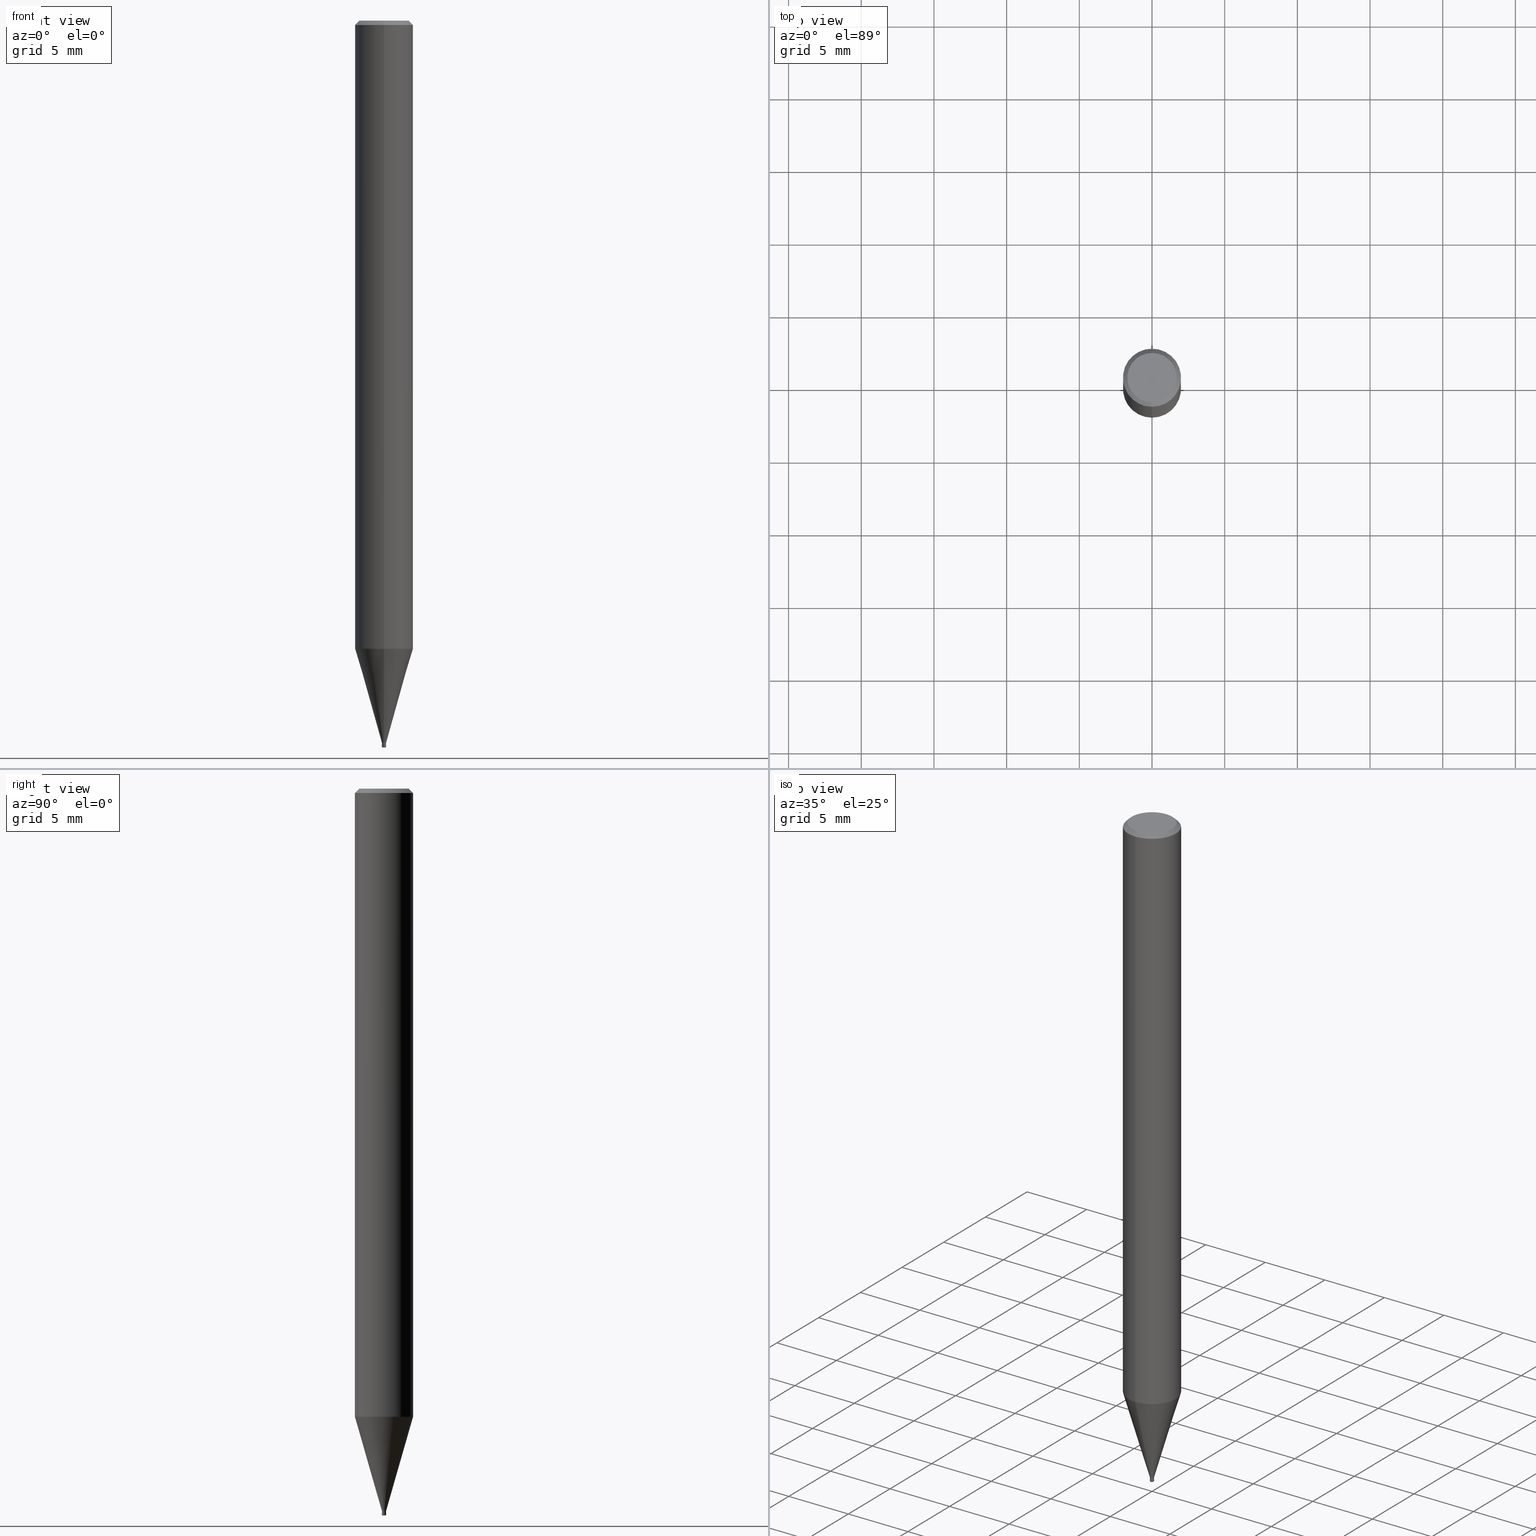
[diagram: canonical four-view strip — front | top / right | iso, engineering-drawing reading convention]
A machine part, canonical four-view strip (front | top / right | iso — engineering-drawing reading convention). The complete STEP part file that produces these views, byte-faithful:
ISO-10303-21;
HEADER;
FILE_DESCRIPTION(('no description'),'unknown implementation level');
FILE_NAME('HLRS4003-005-003-Huellk.stp','  ',('CIMSOURCE GmbH'),('CADClick - KiM GmbH - www.kimweb.de'),'unknown preprocess','ACIS','unknown authorization');
FILE_SCHEMA(('automotive_design'));
ENDSEC;
DATA;
#1=MECHANICAL_DESIGN_GEOMETRIC_PRESENTATION_REPRESENTATION(' ',(#14,#15,#16,#17,#18,#19,#20,#21,#22,#23,#24,#25,#26,#27,#28,#29,#30,#31,#32,#33,#34,#35,#36,#37,#38,#39,#40,#41,#42,#43,#44,#45,#46,#47,#48,#49,#50,#51,#52,#53,#54,#55,#56,#57,#58,#59,#60,#61,#62,#63,#64,#65,#66,#67,#68,#69,#70,#71,#72,#73,#74,#75,#76,#77,#78,#79,#80,#81,#82,#83,#84,#85,#86,#87,#88,#89,#90,#91,#92,#93,#94,#95,#96,#97,#98,#99,#100,#101,#102,#103,#104,#105,#106,#107,#108,#109,#110,#111,#112,#113,#114,#115,#116,#117,#118,#119,#120,#121),#10);
#2=PRODUCT_DEFINITION_CONTEXT('',#122,'design');
#3=APPLICATION_PROTOCOL_DEFINITION('INTERNATIONAL STANDARD','automotive_design',1994,#122);
#4=PRODUCT_CATEGORY_RELATIONSHIP('NONE','NONE',#123,#124);
#5=SHAPE_DEFINITION_REPRESENTATION(#125,#126);
#6=PRODUCT_DEFINITION_CONTEXT('',#127,'design');
#7=APPLICATION_PROTOCOL_DEFINITION('INTERNATIONAL STANDARD','automotive_design',1994,#127);
#8=PRODUCT_CATEGORY_RELATIONSHIP('NONE','NONE',#128,#129);
#9=SHAPE_DEFINITION_REPRESENTATION(#130,#131);
#10= (GEOMETRIC_REPRESENTATION_CONTEXT(3)GLOBAL_UNCERTAINTY_ASSIGNED_CONTEXT((#134))GLOBAL_UNIT_ASSIGNED_CONTEXT((#136,#137,#138))REPRESENTATION_CONTEXT('NONE','WORKSPACE'));
#14=STYLED_ITEM('',(#140),#141);
#15=STYLED_ITEM('',(#142),#143);
#16=STYLED_ITEM('',(#144),#145);
#17=STYLED_ITEM('',(#146),#147);
#18=STYLED_ITEM('',(#148),#149);
#19=STYLED_ITEM('',(#150),#151);
#20=STYLED_ITEM('',(#152),#153);
#21=STYLED_ITEM('',(#154),#155);
#22=STYLED_ITEM('',(#156),#157);
#23=STYLED_ITEM('',(#158),#159);
#24=STYLED_ITEM('',(#160),#161);
#25=STYLED_ITEM('',(#162),#163);
#26=STYLED_ITEM('',(#164),#165);
#27=STYLED_ITEM('',(#166),#167);
#28=STYLED_ITEM('',(#168),#169);
#29=STYLED_ITEM('',(#170),#171);
#30=STYLED_ITEM('',(#172),#173);
#31=STYLED_ITEM('',(#174),#175);
#32=STYLED_ITEM('',(#176),#177);
#33=STYLED_ITEM('',(#178),#179);
#34=STYLED_ITEM('',(#180),#181);
#35=STYLED_ITEM('',(#182),#183);
#36=STYLED_ITEM('',(#184),#185);
#37=STYLED_ITEM('',(#186),#187);
#38=STYLED_ITEM('',(#188),#189);
#39=STYLED_ITEM('',(#190),#191);
#40=STYLED_ITEM('',(#192),#193);
#41=STYLED_ITEM('',(#194),#195);
#42=STYLED_ITEM('',(#196),#197);
#43=STYLED_ITEM('',(#198),#199);
#44=STYLED_ITEM('',(#200),#201);
#45=STYLED_ITEM('',(#202),#203);
#46=STYLED_ITEM('',(#204),#205);
#47=STYLED_ITEM('',(#206),#207);
#48=STYLED_ITEM('',(#208),#209);
#49=STYLED_ITEM('',(#210),#211);
#50=STYLED_ITEM('',(#212),#213);
#51=STYLED_ITEM('',(#214),#215);
#52=STYLED_ITEM('',(#216),#217);
#53=STYLED_ITEM('',(#218),#219);
#54=STYLED_ITEM('',(#220),#221);
#55=STYLED_ITEM('',(#222),#223);
#56=STYLED_ITEM('',(#224),#225);
#57=STYLED_ITEM('',(#226),#227);
#58=STYLED_ITEM('',(#228),#229);
#59=STYLED_ITEM('',(#230),#231);
#60=STYLED_ITEM('',(#232),#233);
#61=STYLED_ITEM('',(#234),#235);
#62=STYLED_ITEM('',(#236),#237);
#63=STYLED_ITEM('',(#238),#239);
#64=STYLED_ITEM('',(#240),#241);
#65=STYLED_ITEM('',(#242),#243);
#66=STYLED_ITEM('',(#244),#245);
#67=STYLED_ITEM('',(#246),#247);
#68=STYLED_ITEM('',(#248),#249);
#69=STYLED_ITEM('',(#250),#251);
#70=STYLED_ITEM('',(#252),#253);
#71=STYLED_ITEM('',(#254),#255);
#72=STYLED_ITEM('',(#256),#257);
#73=STYLED_ITEM('',(#258),#259);
#74=STYLED_ITEM('',(#260),#261);
#75=STYLED_ITEM('',(#262),#263);
#76=STYLED_ITEM('',(#264),#265);
#77=STYLED_ITEM('',(#266),#267);
#78=STYLED_ITEM('',(#268),#269);
#79=STYLED_ITEM('',(#270),#271);
#80=STYLED_ITEM('',(#272),#273);
#81=STYLED_ITEM('',(#274),#275);
#82=STYLED_ITEM('',(#276),#277);
#83=STYLED_ITEM('',(#278),#279);
#84=STYLED_ITEM('',(#280),#281);
#85=STYLED_ITEM('',(#282),#283);
#86=STYLED_ITEM('',(#284),#285);
#87=STYLED_ITEM('',(#286),#287);
#88=STYLED_ITEM('',(#288),#289);
#89=STYLED_ITEM('',(#290),#291);
#90=STYLED_ITEM('',(#292),#293);
#91=STYLED_ITEM('',(#294),#295);
#92=STYLED_ITEM('',(#296),#297);
#93=STYLED_ITEM('',(#298),#299);
#94=STYLED_ITEM('',(#300),#301);
#95=STYLED_ITEM('',(#302),#303);
#96=STYLED_ITEM('',(#304),#305);
#97=STYLED_ITEM('',(#306),#307);
#98=STYLED_ITEM('',(#308),#309);
#99=STYLED_ITEM('',(#310),#311);
#100=STYLED_ITEM('',(#312),#313);
#101=STYLED_ITEM('',(#314),#315);
#102=STYLED_ITEM('',(#316),#317);
#103=STYLED_ITEM('',(#318),#319);
#104=STYLED_ITEM('',(#320),#321);
#105=STYLED_ITEM('',(#322),#323);
#106=STYLED_ITEM('',(#324),#325);
#107=STYLED_ITEM('',(#326),#327);
#108=STYLED_ITEM('',(#328),#329);
#109=STYLED_ITEM('',(#330),#331);
#110=STYLED_ITEM('',(#332),#333);
#111=STYLED_ITEM('',(#334),#335);
#112=STYLED_ITEM('',(#336),#337);
#113=STYLED_ITEM('',(#338),#339);
#114=STYLED_ITEM('',(#340),#341);
#115=STYLED_ITEM('',(#342),#343);
#116=STYLED_ITEM('',(#344),#345);
#117=STYLED_ITEM('',(#346),#347);
#118=STYLED_ITEM('',(#348),#349);
#119=STYLED_ITEM('',(#350),#351);
#120=STYLED_ITEM('',(#352),#353);
#121=STYLED_ITEM('',(#354),#355);
#122=APPLICATION_CONTEXT(' ');
#123=PRODUCT_CATEGORY('part','NONE');
#124=PRODUCT_RELATED_PRODUCT_CATEGORY('detail',' ',(#356));
#125=PRODUCT_DEFINITION_SHAPE('NONE','NONE',#357);
#126=ADVANCED_BREP_SHAPE_REPRESENTATION('1',(#335,#358),#10);
#127=APPLICATION_CONTEXT(' ');
#128=PRODUCT_CATEGORY('part','NONE');
#129=PRODUCT_RELATED_PRODUCT_CATEGORY('detail',' ',(#359));
#130=PRODUCT_DEFINITION_SHAPE('NONE','NONE',#360);
#131=ADVANCED_BREP_SHAPE_REPRESENTATION('2',(#155,#361),#10);
#134=UNCERTAINTY_MEASURE_WITH_UNIT(LENGTH_MEASURE(1.0E-006),#136,'','');
#136= (CONVERSION_BASED_UNIT('MILLIMETRE',#364)LENGTH_UNIT()NAMED_UNIT(#367));
#137= (NAMED_UNIT(#369)PLANE_ANGLE_UNIT()SI_UNIT($,.RADIAN.));
#138= (NAMED_UNIT(#369)SOLID_ANGLE_UNIT()SI_UNIT($,.STERADIAN.));
#140=PRESENTATION_STYLE_ASSIGNMENT((#375));
#141=ADVANCED_FACE('',(#376),#377,.T.);
#142=PRESENTATION_STYLE_ASSIGNMENT((#378));
#143=EDGE_CURVE('',#353,#235,#379,.T.);
#144=PRESENTATION_STYLE_ASSIGNMENT((#380));
#145=ADVANCED_FACE('',(#381),#382,.T.);
#146=PRESENTATION_STYLE_ASSIGNMENT((#383));
#147=VERTEX_POINT('',#384);
#148=PRESENTATION_STYLE_ASSIGNMENT((#385));
#149=ADVANCED_FACE('',(#386),#387,.F.);
#150=PRESENTATION_STYLE_ASSIGNMENT((#388));
#151=VERTEX_POINT('',#389);
#152=PRESENTATION_STYLE_ASSIGNMENT((#390));
#153=VERTEX_POINT('',#391);
#154=PRESENTATION_STYLE_ASSIGNMENT((#392));
#155=MANIFOLD_SOLID_BREP('2',#393);
#156=PRESENTATION_STYLE_ASSIGNMENT((#394));
#157=EDGE_CURVE('',#177,#151,#395,.T.);
#158=PRESENTATION_STYLE_ASSIGNMENT((#396));
#159=VERTEX_POINT('',#397);
#160=PRESENTATION_STYLE_ASSIGNMENT((#398));
#161=EDGE_CURVE('',#323,#191,#399,.T.);
#162=PRESENTATION_STYLE_ASSIGNMENT((#400));
#163=EDGE_CURVE('',#171,#177,#401,.T.);
#164=PRESENTATION_STYLE_ASSIGNMENT((#402));
#165=VERTEX_POINT('',#403);
#166=PRESENTATION_STYLE_ASSIGNMENT((#404));
#167=EDGE_CURVE('',#331,#229,#405,.T.);
#168=PRESENTATION_STYLE_ASSIGNMENT((#406));
#169=ADVANCED_FACE('',(#407),#408,.T.);
#170=PRESENTATION_STYLE_ASSIGNMENT((#409));
#171=VERTEX_POINT('',#410);
#172=PRESENTATION_STYLE_ASSIGNMENT((#411));
#173=VERTEX_POINT('',#412);
#174=PRESENTATION_STYLE_ASSIGNMENT((#413));
#175=VERTEX_POINT('',#414);
#176=PRESENTATION_STYLE_ASSIGNMENT((#415));
#177=VERTEX_POINT('',#416);
#178=PRESENTATION_STYLE_ASSIGNMENT((#417));
#179=ADVANCED_FACE('',(#418),#419,.T.);
#180=PRESENTATION_STYLE_ASSIGNMENT((#420));
#181=EDGE_CURVE('',#325,#197,#421,.T.);
#182=PRESENTATION_STYLE_ASSIGNMENT((#422));
#183=EDGE_CURVE('',#191,#323,#423,.T.);
#184=PRESENTATION_STYLE_ASSIGNMENT((#424));
#185=ADVANCED_FACE('',(#425),#426,.T.);
#186=PRESENTATION_STYLE_ASSIGNMENT((#427));
#187=EDGE_CURVE('',#147,#201,#428,.T.);
#188=PRESENTATION_STYLE_ASSIGNMENT((#429));
#189=EDGE_CURVE('',#265,#267,#430,.T.);
#190=PRESENTATION_STYLE_ASSIGNMENT((#431));
#191=VERTEX_POINT('',#432);
#192=PRESENTATION_STYLE_ASSIGNMENT((#433));
#193=EDGE_CURVE('',#343,#197,#434,.T.);
#194=PRESENTATION_STYLE_ASSIGNMENT((#435));
#195=ADVANCED_FACE('',(#436),#437,.F.);
#196=PRESENTATION_STYLE_ASSIGNMENT((#438));
#197=VERTEX_POINT('',#439);
#198=PRESENTATION_STYLE_ASSIGNMENT((#440));
#199=EDGE_CURVE('',#173,#325,#441,.T.);
#200=PRESENTATION_STYLE_ASSIGNMENT((#442));
#201=VERTEX_POINT('',#443);
#202=PRESENTATION_STYLE_ASSIGNMENT((#444));
#203=EDGE_CURVE('',#191,#265,#445,.T.);
#204=PRESENTATION_STYLE_ASSIGNMENT((#446));
#205=EDGE_CURVE('',#175,#321,#447,.T.);
#206=PRESENTATION_STYLE_ASSIGNMENT((#448));
#207=EDGE_CURVE('',#173,#333,#449,.T.);
#208=PRESENTATION_STYLE_ASSIGNMENT((#450));
#209=VERTEX_POINT('',#451);
#210=PRESENTATION_STYLE_ASSIGNMENT((#452));
#211=VERTEX_POINT('',#453);
#212=PRESENTATION_STYLE_ASSIGNMENT((#454));
#213=ADVANCED_FACE('',(#455),#456,.T.);
#214=PRESENTATION_STYLE_ASSIGNMENT((#457));
#215=EDGE_CURVE('',#341,#321,#458,.T.);
#216=PRESENTATION_STYLE_ASSIGNMENT((#459));
#217=ADVANCED_FACE('',(#460,#461),#462,.T.);
#218=PRESENTATION_STYLE_ASSIGNMENT((#463));
#219=EDGE_CURVE('',#229,#253,#464,.T.);
#220=PRESENTATION_STYLE_ASSIGNMENT((#465));
#221=VERTEX_POINT('',#466);
#222=PRESENTATION_STYLE_ASSIGNMENT((#467));
#223=ADVANCED_FACE('',(#468),#469,.T.);
#224=PRESENTATION_STYLE_ASSIGNMENT((#470));
#225=ADVANCED_FACE('',(#471),#472,.T.);
#226=PRESENTATION_STYLE_ASSIGNMENT((#473));
#227=ADVANCED_FACE('',(#474),#475,.T.);
#228=PRESENTATION_STYLE_ASSIGNMENT((#476));
#229=VERTEX_POINT('',#477);
#230=PRESENTATION_STYLE_ASSIGNMENT((#478));
#231=EDGE_CURVE('',#229,#331,#479,.T.);
#232=PRESENTATION_STYLE_ASSIGNMENT((#480));
#233=EDGE_CURVE('',#325,#209,#481,.T.);
#234=PRESENTATION_STYLE_ASSIGNMENT((#482));
#235=VERTEX_POINT('',#483);
#236=PRESENTATION_STYLE_ASSIGNMENT((#484));
#237=EDGE_CURVE('',#209,#343,#485,.T.);
#238=PRESENTATION_STYLE_ASSIGNMENT((#486));
#239=EDGE_CURVE('',#153,#341,#487,.T.);
#240=PRESENTATION_STYLE_ASSIGNMENT((#488));
#241=EDGE_CURVE('',#333,#173,#489,.T.);
#242=PRESENTATION_STYLE_ASSIGNMENT((#490));
#243=EDGE_CURVE('',#343,#209,#491,.T.);
#244=PRESENTATION_STYLE_ASSIGNMENT((#492));
#245=VERTEX_POINT('',#493);
#246=PRESENTATION_STYLE_ASSIGNMENT((#494));
#247=EDGE_CURVE('',#245,#341,#495,.T.);
#248=PRESENTATION_STYLE_ASSIGNMENT((#496));
#249=EDGE_CURVE('',#177,#147,#497,.T.);
#250=PRESENTATION_STYLE_ASSIGNMENT((#498));
#251=ADVANCED_FACE('',(#499),#500,.T.);
#252=PRESENTATION_STYLE_ASSIGNMENT((#501));
#253=VERTEX_POINT('',#502);
#254=PRESENTATION_STYLE_ASSIGNMENT((#503));
#255=VERTEX_POINT('',#504);
#256=PRESENTATION_STYLE_ASSIGNMENT((#505));
#257=ADVANCED_FACE('',(#506),#507,.T.);
#258=PRESENTATION_STYLE_ASSIGNMENT((#508));
#259=EDGE_CURVE('',#267,#265,#509,.T.);
#260=PRESENTATION_STYLE_ASSIGNMENT((#510));
#261=ADVANCED_FACE('',(#511),#512,.T.);
#262=PRESENTATION_STYLE_ASSIGNMENT((#513));
#263=EDGE_CURVE('',#159,#165,#514,.T.);
#264=PRESENTATION_STYLE_ASSIGNMENT((#515));
#265=VERTEX_POINT('',#516);
#266=PRESENTATION_STYLE_ASSIGNMENT((#517));
#267=VERTEX_POINT('',#518);
#268=PRESENTATION_STYLE_ASSIGNMENT((#519));
#269=ADVANCED_FACE('',(#520),#521,.T.);
#270=PRESENTATION_STYLE_ASSIGNMENT((#522));
#271=ADVANCED_FACE('',(#523,#524),#525,.T.);
#272=PRESENTATION_STYLE_ASSIGNMENT((#526));
#273=ADVANCED_FACE('',(#527),#528,.T.);
#274=PRESENTATION_STYLE_ASSIGNMENT((#529));
#275=EDGE_CURVE('',#323,#159,#530,.T.);
#276=PRESENTATION_STYLE_ASSIGNMENT((#531));
#277=EDGE_CURVE('',#197,#333,#532,.T.);
#278=PRESENTATION_STYLE_ASSIGNMENT((#533));
#279=ADVANCED_FACE('',(#534),#535,.T.);
#280=PRESENTATION_STYLE_ASSIGNMENT((#536));
#281=EDGE_CURVE('',#201,#151,#537,.T.);
#282=PRESENTATION_STYLE_ASSIGNMENT((#538));
#283=EDGE_CURVE('',#235,#353,#539,.T.);
#284=PRESENTATION_STYLE_ASSIGNMENT((#540));
#285=EDGE_CURVE('',#175,#153,#541,.T.);
#286=PRESENTATION_STYLE_ASSIGNMENT((#542));
#287=EDGE_CURVE('',#321,#175,#543,.T.);
#288=PRESENTATION_STYLE_ASSIGNMENT((#544));
#289=ADVANCED_FACE('',(#545),#546,.F.);
#290=PRESENTATION_STYLE_ASSIGNMENT((#547));
#291=EDGE_CURVE('',#197,#325,#548,.T.);
#292=PRESENTATION_STYLE_ASSIGNMENT((#549));
#293=EDGE_CURVE('',#255,#171,#550,.T.);
#294=PRESENTATION_STYLE_ASSIGNMENT((#551));
#295=EDGE_CURVE('',#267,#323,#552,.T.);
#296=PRESENTATION_STYLE_ASSIGNMENT((#553));
#297=EDGE_CURVE('',#253,#211,#554,.T.);
#298=PRESENTATION_STYLE_ASSIGNMENT((#555));
#299=EDGE_CURVE('',#211,#331,#556,.T.);
#300=PRESENTATION_STYLE_ASSIGNMENT((#557));
#301=EDGE_CURVE('',#151,#255,#558,.T.);
#302=PRESENTATION_STYLE_ASSIGNMENT((#559));
#303=EDGE_CURVE('',#153,#221,#560,.T.);
#304=PRESENTATION_STYLE_ASSIGNMENT((#561));
#305=ADVANCED_FACE('',(#562),#563,.T.);
#306=PRESENTATION_STYLE_ASSIGNMENT((#564));
#307=EDGE_CURVE('',#229,#353,#565,.T.);
#308=PRESENTATION_STYLE_ASSIGNMENT((#566));
#309=EDGE_CURVE('',#235,#331,#567,.T.);
#310=PRESENTATION_STYLE_ASSIGNMENT((#568));
#311=ADVANCED_FACE('',(#569),#570,.T.);
#312=PRESENTATION_STYLE_ASSIGNMENT((#571));
#313=EDGE_CURVE('',#151,#177,#572,.T.);
#314=PRESENTATION_STYLE_ASSIGNMENT((#573));
#315=EDGE_CURVE('',#201,#147,#574,.T.);
#316=PRESENTATION_STYLE_ASSIGNMENT((#575));
#317=EDGE_CURVE('',#211,#253,#576,.T.);
#318=PRESENTATION_STYLE_ASSIGNMENT((#577));
#319=EDGE_CURVE('',#221,#245,#578,.T.);
#320=PRESENTATION_STYLE_ASSIGNMENT((#579));
#321=VERTEX_POINT('',#580);
#322=PRESENTATION_STYLE_ASSIGNMENT((#581));
#323=VERTEX_POINT('',#582);
#324=PRESENTATION_STYLE_ASSIGNMENT((#583));
#325=VERTEX_POINT('',#584);
#326=PRESENTATION_STYLE_ASSIGNMENT((#585));
#327=EDGE_CURVE('',#165,#159,#586,.T.);
#328=PRESENTATION_STYLE_ASSIGNMENT((#587));
#329=EDGE_CURVE('',#245,#221,#588,.T.);
#330=PRESENTATION_STYLE_ASSIGNMENT((#589));
#331=VERTEX_POINT('',#590);
#332=PRESENTATION_STYLE_ASSIGNMENT((#591));
#333=VERTEX_POINT('',#592);
#334=PRESENTATION_STYLE_ASSIGNMENT((#593));
#335=MANIFOLD_SOLID_BREP('1',#594);
#336=PRESENTATION_STYLE_ASSIGNMENT((#595));
#337=ADVANCED_FACE('',(#596,#597),#598,.T.);
#338=PRESENTATION_STYLE_ASSIGNMENT((#599));
#339=ADVANCED_FACE('',(#600,#601),#602,.T.);
#340=PRESENTATION_STYLE_ASSIGNMENT((#603));
#341=VERTEX_POINT('',#604);
#342=PRESENTATION_STYLE_ASSIGNMENT((#605));
#343=VERTEX_POINT('',#606);
#344=PRESENTATION_STYLE_ASSIGNMENT((#607));
#345=EDGE_CURVE('',#171,#255,#608,.T.);
#346=PRESENTATION_STYLE_ASSIGNMENT((#609));
#347=ADVANCED_FACE('',(#610),#611,.T.);
#348=PRESENTATION_STYLE_ASSIGNMENT((#612));
#349=EDGE_CURVE('',#165,#191,#613,.T.);
#350=PRESENTATION_STYLE_ASSIGNMENT((#614));
#351=EDGE_CURVE('',#341,#153,#615,.T.);
#352=PRESENTATION_STYLE_ASSIGNMENT((#616));
#353=VERTEX_POINT('',#617);
#354=PRESENTATION_STYLE_ASSIGNMENT((#618));
#355=ADVANCED_FACE('',(#619),#620,.F.);
#356=PRODUCT('1','1','PART-1-DESC',(#621));
#357=PRODUCT_DEFINITION('NONE','NONE',#622,#2);
#358=AXIS2_PLACEMENT_3D('',#623,#624,#625);
#359=PRODUCT('2','2','PART-2-DESC',(#626));
#360=PRODUCT_DEFINITION('NONE','NONE',#627,#6);
#361=AXIS2_PLACEMENT_3D('',#628,#629,#630);
#364=LENGTH_MEASURE_WITH_UNIT(LENGTH_MEASURE(1.0),#631);
#367=DIMENSIONAL_EXPONENTS(1.0,0.0,0.0,0.0,0.0,0.0,0.0);
#369=DIMENSIONAL_EXPONENTS(0.0,0.0,0.0,0.0,0.0,0.0,0.0);
#375=SURFACE_STYLE_USAGE(.BOTH.,#632);
#376=FACE_OUTER_BOUND('',#633,.T.);
#377=CYLINDRICAL_SURFACE('',#634,2.0);
#378=CURVE_STYLE('',#635,POSITIVE_LENGTH_MEASURE(1.0E-006),#636);
#379=CIRCLE('',#637,0.1);
#380=SURFACE_STYLE_USAGE(.BOTH.,#638);
#381=FACE_OUTER_BOUND('',#639,.T.);
#382=CONICAL_SURFACE('',#640,1.85,0.785398163397453);
#383=POINT_STYLE(' ',#641,POSITIVE_LENGTH_MEASURE(1.0E-006),#642);
#384=CARTESIAN_POINT('',(0.0,0.0675,-49.945));
#385=SURFACE_STYLE_USAGE(.BOTH.,#643);
#386=FACE_OUTER_BOUND('',#644,.T.);
#387=CONICAL_SURFACE('',#645,0.1062,1.44230912436268);
#388=POINT_STYLE(' ',#646,POSITIVE_LENGTH_MEASURE(1.0E-006),#647);
#389=CARTESIAN_POINT('',(8.26609288830105E-018,-0.0675,-49.82));
#390=POINT_STYLE(' ',#648,POSITIVE_LENGTH_MEASURE(1.0E-006),#649);
#391=CARTESIAN_POINT('',(1.71383659217442E-017,-0.13995,-49.69));
#392=SURFACE_STYLE_USAGE(.BOTH.,#650);
#393=CLOSED_SHELL('',(#355,#305,#269,#195,#149,#337,#169,#227,#217,#289));
#394=CURVE_STYLE('',#651,POSITIVE_LENGTH_MEASURE(1.0E-006),#652);
#395=CIRCLE('',#653,0.0675);
#396=POINT_STYLE(' ',#654,POSITIVE_LENGTH_MEASURE(1.0E-006),#655);
#397=CARTESIAN_POINT('',(2.08183080149804E-016,-1.7,0.00999999999999801));
#398=CURVE_STYLE('',#656,POSITIVE_LENGTH_MEASURE(1.0E-006),#657);
#399=CIRCLE('',#658,2.0);
#400=CURVE_STYLE('',#659,POSITIVE_LENGTH_MEASURE(1.0E-006),#660);
#401=LINE('',#661,#662);
#402=POINT_STYLE(' ',#663,POSITIVE_LENGTH_MEASURE(1.0E-006),#664);
#403=CARTESIAN_POINT('',(0.0,1.7,0.00999999999999801));
#404=CURVE_STYLE('',#665,POSITIVE_LENGTH_MEASURE(1.0E-006),#666);
#405=CIRCLE('',#667,0.15);
#406=SURFACE_STYLE_USAGE(.BOTH.,#668);
#407=FACE_OUTER_BOUND('',#669,.T.);
#408=CONICAL_SURFACE('',#670,0.14995,0.000769230617508693);
#409=POINT_STYLE(' ',#671,POSITIVE_LENGTH_MEASURE(1.0E-006),#672);
#410=CARTESIAN_POINT('',(0.0,0.14495,-49.81));
#411=POINT_STYLE(' ',#673,POSITIVE_LENGTH_MEASURE(1.0E-006),#674);
#412=CARTESIAN_POINT('',(0.0,0.1449,-49.81));
#413=POINT_STYLE(' ',#675,POSITIVE_LENGTH_MEASURE(1.0E-006),#676);
#414=CARTESIAN_POINT('',(1.71383659217442E-017,-0.13995,-49.81));
#415=POINT_STYLE(' ',#677,POSITIVE_LENGTH_MEASURE(1.0E-006),#678);
#416=CARTESIAN_POINT('',(0.0,0.0675,-49.82));
#417=SURFACE_STYLE_USAGE(.BOTH.,#679);
#418=FACE_OUTER_BOUND('',#680,.T.);
#419=CYLINDRICAL_SURFACE('',#681,0.13995);
#420=CURVE_STYLE('',#682,POSITIVE_LENGTH_MEASURE(1.0E-006),#683);
#421=CIRCLE('',#684,0.0675);
#422=CURVE_STYLE('',#685,POSITIVE_LENGTH_MEASURE(1.0E-006),#686);
#423=CIRCLE('',#687,2.0);
#424=SURFACE_STYLE_USAGE(.BOTH.,#688);
#425=FACE_OUTER_BOUND('',#689,.T.);
#426=PLANE('',#690);
#427=CURVE_STYLE('',#691,POSITIVE_LENGTH_MEASURE(1.0E-006),#692);
#428=CIRCLE('',#693,0.0675);
#429=CURVE_STYLE('',#694,POSITIVE_LENGTH_MEASURE(1.0E-006),#695);
#430=CIRCLE('',#696,2.0);
#431=POINT_STYLE(' ',#697,POSITIVE_LENGTH_MEASURE(1.0E-006),#698);
#432=CARTESIAN_POINT('',(0.0,2.0,-0.289999999999999));
#433=CURVE_STYLE('',#699,POSITIVE_LENGTH_MEASURE(1.0E-006),#700);
#434=LINE('',#701,#702);
#435=SURFACE_STYLE_USAGE(.BOTH.,#703);
#436=FACE_OUTER_BOUND('',#704,.T.);
#437=CONICAL_SURFACE('',#705,0.1062,1.44230912436268);
#438=POINT_STYLE(' ',#706,POSITIVE_LENGTH_MEASURE(1.0E-006),#707);
#439=CARTESIAN_POINT('',(8.26609288830105E-018,-0.0675,-49.82));
#440=CURVE_STYLE('',#708,POSITIVE_LENGTH_MEASURE(1.0E-006),#709);
#441=LINE('',#710,#711);
#442=POINT_STYLE(' ',#712,POSITIVE_LENGTH_MEASURE(1.0E-006),#713);
#443=CARTESIAN_POINT('',(8.26609288830105E-018,-0.0675,-49.945));
#444=CURVE_STYLE('',#714,POSITIVE_LENGTH_MEASURE(1.0E-006),#715);
#445=LINE('',#716,#717);
#446=CURVE_STYLE('',#718,POSITIVE_LENGTH_MEASURE(1.0E-006),#719);
#447=CIRCLE('',#720,0.13995);
#448=CURVE_STYLE('',#721,POSITIVE_LENGTH_MEASURE(1.0E-006),#722);
#449=CIRCLE('',#723,0.1449);
#450=POINT_STYLE(' ',#724,POSITIVE_LENGTH_MEASURE(1.0E-006),#725);
#451=CARTESIAN_POINT('',(0.0,0.0675,-49.99));
#452=POINT_STYLE(' ',#726,POSITIVE_LENGTH_MEASURE(1.0E-006),#727);
#453=CARTESIAN_POINT('',(0.0,0.1499,-49.81));
#454=SURFACE_STYLE_USAGE(.BOTH.,#728);
#455=FACE_OUTER_BOUND('',#729,.T.);
#456=CYLINDRICAL_SURFACE('',#730,2.0);
#457=CURVE_STYLE('',#731,POSITIVE_LENGTH_MEASURE(1.0E-006),#732);
#458=LINE('',#733,#734);
#459=SURFACE_STYLE_USAGE(.BOTH.,#735);
#460=FACE_BOUND('',#736,.T.);
#461=FACE_OUTER_BOUND('',#737,.T.);
#462=PLANE('',#738);
#463=CURVE_STYLE('',#739,POSITIVE_LENGTH_MEASURE(1.0E-006),#740);
#464=LINE('',#741,#742);
#465=POINT_STYLE(' ',#743,POSITIVE_LENGTH_MEASURE(1.0E-006),#744);
#466=CARTESIAN_POINT('',(2.44915147732706E-016,-1.99995,-43.203));
#467=SURFACE_STYLE_USAGE(.BOTH.,#745);
#468=FACE_OUTER_BOUND('',#746,.T.);
#469=CYLINDRICAL_SURFACE('',#747,0.0675);
#470=SURFACE_STYLE_USAGE(.BOTH.,#748);
#471=FACE_OUTER_BOUND('',#749,.T.);
#472=CYLINDRICAL_SURFACE('',#750,0.0675);
#473=SURFACE_STYLE_USAGE(.BOTH.,#751);
#474=FACE_OUTER_BOUND('',#752,.T.);
#475=TOROIDAL_SURFACE('',#753,0.1,0.05);
#476=POINT_STYLE(' ',#754,POSITIVE_LENGTH_MEASURE(1.0E-006),#755);
#477=CARTESIAN_POINT('',(1.83690953073357E-017,-0.15,-49.94));
#478=CURVE_STYLE('',#756,POSITIVE_LENGTH_MEASURE(1.0E-006),#757);
#479=CIRCLE('',#758,0.15);
#480=CURVE_STYLE('',#759,POSITIVE_LENGTH_MEASURE(1.0E-006),#760);
#481=LINE('',#761,#762);
#482=POINT_STYLE(' ',#763,POSITIVE_LENGTH_MEASURE(1.0E-006),#764);
#483=CARTESIAN_POINT('',(0.0,0.1,-49.99));
#484=CURVE_STYLE('',#765,POSITIVE_LENGTH_MEASURE(1.0E-006),#766);
#485=CIRCLE('',#767,0.0675);
#486=CURVE_STYLE('',#768,POSITIVE_LENGTH_MEASURE(1.0E-006),#769);
#487=CIRCLE('',#770,0.13995);
#488=CURVE_STYLE('',#771,POSITIVE_LENGTH_MEASURE(1.0E-006),#772);
#489=CIRCLE('',#773,0.1449);
#490=CURVE_STYLE('',#774,POSITIVE_LENGTH_MEASURE(1.0E-006),#775);
#491=CIRCLE('',#776,0.0675);
#492=POINT_STYLE(' ',#777,POSITIVE_LENGTH_MEASURE(1.0E-006),#778);
#493=CARTESIAN_POINT('',(0.0,1.99995,-43.203));
#494=CURVE_STYLE('',#779,POSITIVE_LENGTH_MEASURE(1.0E-006),#780);
#495=LINE('',#781,#782);
#496=CURVE_STYLE('',#783,POSITIVE_LENGTH_MEASURE(1.0E-006),#784);
#497=LINE('',#785,#786);
#498=SURFACE_STYLE_USAGE(.BOTH.,#787);
#499=FACE_OUTER_BOUND('',#788,.T.);
#500=CYLINDRICAL_SURFACE('',#789,0.13995);
#501=POINT_STYLE(' ',#790,POSITIVE_LENGTH_MEASURE(1.0E-006),#791);
#502=CARTESIAN_POINT('',(1.83568492437974E-017,-0.1499,-49.81));
#503=POINT_STYLE(' ',#792,POSITIVE_LENGTH_MEASURE(1.0E-006),#793);
#504=CARTESIAN_POINT('',(1.77506690986554E-017,-0.14495,-49.81));
#505=SURFACE_STYLE_USAGE(.BOTH.,#794);
#506=FACE_OUTER_BOUND('',#795,.T.);
#507=CONICAL_SURFACE('',#796,0.106225,1.44239116379722);
#508=CURVE_STYLE('',#797,POSITIVE_LENGTH_MEASURE(1.0E-006),#798);
#509=CIRCLE('',#799,2.0);
#510=SURFACE_STYLE_USAGE(.BOTH.,#800);
#511=FACE_OUTER_BOUND('',#801,.T.);
#512=CONICAL_SURFACE('',#802,1.06995,0.27923596926092);
#513=CURVE_STYLE('',#803,POSITIVE_LENGTH_MEASURE(1.0E-006),#804);
#514=CIRCLE('',#805,1.7);
#515=POINT_STYLE(' ',#806,POSITIVE_LENGTH_MEASURE(1.0E-006),#807);
#516=CARTESIAN_POINT('',(0.0,2.0,-43.203));
#517=POINT_STYLE(' ',#808,POSITIVE_LENGTH_MEASURE(1.0E-006),#809);
#518=CARTESIAN_POINT('',(2.44921270764475E-016,-2.0,-43.203));
#519=SURFACE_STYLE_USAGE(.BOTH.,#810);
#520=FACE_OUTER_BOUND('',#811,.T.);
#521=CONICAL_SURFACE('',#812,0.14995,0.000769230617508693);
#522=SURFACE_STYLE_USAGE(.BOTH.,#813);
#523=FACE_OUTER_BOUND('',#814,.T.);
#524=FACE_BOUND('',#815,.T.);
#525=PLANE('',#816);
#526=SURFACE_STYLE_USAGE(.BOTH.,#817);
#527=FACE_OUTER_BOUND('',#818,.T.);
#528=CONICAL_SURFACE('',#819,0.106225,1.44239116379722);
#529=CURVE_STYLE('',#820,POSITIVE_LENGTH_MEASURE(1.0E-006),#821);
#530=LINE('',#822,#823);
#531=CURVE_STYLE('',#824,POSITIVE_LENGTH_MEASURE(1.0E-006),#825);
#532=LINE('',#826,#827);
#533=SURFACE_STYLE_USAGE(.BOTH.,#828);
#534=FACE_OUTER_BOUND('',#829,.T.);
#535=CONICAL_SURFACE('',#830,1.06995,0.27923596926092);
#536=CURVE_STYLE('',#831,POSITIVE_LENGTH_MEASURE(1.0E-006),#832);
#537=LINE('',#833,#834);
#538=CURVE_STYLE('',#835,POSITIVE_LENGTH_MEASURE(1.0E-006),#836);
#539=CIRCLE('',#837,0.1);
#540=CURVE_STYLE('',#838,POSITIVE_LENGTH_MEASURE(1.0E-006),#839);
#541=LINE('',#840,#841);
#542=CURVE_STYLE('',#842,POSITIVE_LENGTH_MEASURE(1.0E-006),#843);
#543=CIRCLE('',#844,0.13995);
#544=SURFACE_STYLE_USAGE(.BOTH.,#845);
#545=FACE_OUTER_BOUND('',#846,.T.);
#546=CYLINDRICAL_SURFACE('',#847,0.0675);
#547=CURVE_STYLE('',#848,POSITIVE_LENGTH_MEASURE(1.0E-006),#849);
#548=CIRCLE('',#850,0.0675);
#549=CURVE_STYLE('',#851,POSITIVE_LENGTH_MEASURE(1.0E-006),#852);
#550=CIRCLE('',#853,0.14495);
#551=CURVE_STYLE('',#854,POSITIVE_LENGTH_MEASURE(1.0E-006),#855);
#552=LINE('',#856,#857);
#553=CURVE_STYLE('',#858,POSITIVE_LENGTH_MEASURE(1.0E-006),#859);
#554=CIRCLE('',#860,0.1499);
#555=CURVE_STYLE('',#861,POSITIVE_LENGTH_MEASURE(1.0E-006),#862);
#556=LINE('',#863,#864);
#557=CURVE_STYLE('',#865,POSITIVE_LENGTH_MEASURE(1.0E-006),#866);
#558=LINE('',#867,#868);
#559=CURVE_STYLE('',#869,POSITIVE_LENGTH_MEASURE(1.0E-006),#870);
#560=LINE('',#871,#872);
#561=SURFACE_STYLE_USAGE(.BOTH.,#873);
#562=FACE_OUTER_BOUND('',#874,.T.);
#563=TOROIDAL_SURFACE('',#875,0.1,0.05);
#564=CURVE_STYLE('',#876,POSITIVE_LENGTH_MEASURE(1.0E-006),#877);
#565=CIRCLE('',#878,0.05);
#566=CURVE_STYLE('',#879,POSITIVE_LENGTH_MEASURE(1.0E-006),#880);
#567=CIRCLE('',#881,0.05);
#568=SURFACE_STYLE_USAGE(.BOTH.,#882);
#569=FACE_OUTER_BOUND('',#883,.T.);
#570=PLANE('',#884);
#571=CURVE_STYLE('',#885,POSITIVE_LENGTH_MEASURE(1.0E-006),#886);
#572=CIRCLE('',#887,0.0675);
#573=CURVE_STYLE('',#888,POSITIVE_LENGTH_MEASURE(1.0E-006),#889);
#574=CIRCLE('',#890,0.0675);
#575=CURVE_STYLE('',#891,POSITIVE_LENGTH_MEASURE(1.0E-006),#892);
#576=CIRCLE('',#893,0.1499);
#577=CURVE_STYLE('',#894,POSITIVE_LENGTH_MEASURE(1.0E-006),#895);
#578=CIRCLE('',#896,1.99995);
#579=POINT_STYLE(' ',#897,POSITIVE_LENGTH_MEASURE(1.0E-006),#898);
#580=CARTESIAN_POINT('',(0.0,0.13995,-49.81));
#581=POINT_STYLE(' ',#899,POSITIVE_LENGTH_MEASURE(1.0E-006),#900);
#582=CARTESIAN_POINT('',(2.44921270764475E-016,-2.0,-0.289999999999999));
#583=POINT_STYLE(' ',#901,POSITIVE_LENGTH_MEASURE(1.0E-006),#902);
#584=CARTESIAN_POINT('',(0.0,0.0675,-49.82));
#585=CURVE_STYLE('',#903,POSITIVE_LENGTH_MEASURE(1.0E-006),#904);
#586=CIRCLE('',#905,1.7);
#587=CURVE_STYLE('',#906,POSITIVE_LENGTH_MEASURE(1.0E-006),#907);
#588=CIRCLE('',#908,1.99995);
#589=POINT_STYLE(' ',#909,POSITIVE_LENGTH_MEASURE(1.0E-006),#910);
#590=CARTESIAN_POINT('',(0.0,0.15,-49.94));
#591=POINT_STYLE(' ',#911,POSITIVE_LENGTH_MEASURE(1.0E-006),#912);
#592=CARTESIAN_POINT('',(1.77445460668862E-017,-0.1449,-49.81));
#593=SURFACE_STYLE_USAGE(.BOTH.,#913);
#594=CLOSED_SHELL('',(#223,#273,#251,#279,#213,#145,#271,#311,#347,#141,#261,#179,#339,#257,#225,#185));
#595=SURFACE_STYLE_USAGE(.BOTH.,#914);
#596=FACE_OUTER_BOUND('',#915,.T.);
#597=FACE_BOUND('',#916,.T.);
#598=PLANE('',#917);
#599=SURFACE_STYLE_USAGE(.BOTH.,#918);
#600=FACE_OUTER_BOUND('',#919,.T.);
#601=FACE_BOUND('',#920,.T.);
#602=PLANE('',#921);
#603=POINT_STYLE(' ',#922,POSITIVE_LENGTH_MEASURE(1.0E-006),#923);
#604=CARTESIAN_POINT('',(0.0,0.13995,-49.69));
#605=POINT_STYLE(' ',#924,POSITIVE_LENGTH_MEASURE(1.0E-006),#925);
#606=CARTESIAN_POINT('',(8.26609288830105E-018,-0.0675,-49.99));
#607=CURVE_STYLE('',#926,POSITIVE_LENGTH_MEASURE(1.0E-006),#927);
#608=CIRCLE('',#928,0.14495);
#609=SURFACE_STYLE_USAGE(.BOTH.,#929);
#610=FACE_OUTER_BOUND('',#930,.T.);
#611=CONICAL_SURFACE('',#931,1.85,0.785398163397453);
#612=CURVE_STYLE('',#932,POSITIVE_LENGTH_MEASURE(1.0E-006),#933);
#613=LINE('',#934,#935);
#614=CURVE_STYLE('',#936,POSITIVE_LENGTH_MEASURE(1.0E-006),#937);
#615=CIRCLE('',#938,0.13995);
#616=POINT_STYLE(' ',#939,POSITIVE_LENGTH_MEASURE(1.0E-006),#940);
#617=CARTESIAN_POINT('',(1.22460635382238E-017,-0.1,-49.99));
#618=SURFACE_STYLE_USAGE(.BOTH.,#941);
#619=FACE_OUTER_BOUND('',#942,.T.);
#620=CYLINDRICAL_SURFACE('',#943,0.0675);
#621=PRODUCT_CONTEXT('',#122,'mechanical');
#622=PRODUCT_DEFINITION_FORMATION_WITH_SPECIFIED_SOURCE(' ','NONE',#356,.NOT_KNOWN.);
#623=CARTESIAN_POINT('',(0.0,0.0,0.0));
#624=DIRECTION('',(0.0,0.0,1.0));
#625=DIRECTION('',(1.0,0.0,0.0));
#626=PRODUCT_CONTEXT('',#127,'mechanical');
#627=PRODUCT_DEFINITION_FORMATION_WITH_SPECIFIED_SOURCE(' ','NONE',#359,.NOT_KNOWN.);
#628=CARTESIAN_POINT('',(0.0,0.0,0.0));
#629=DIRECTION('',(0.0,0.0,1.0));
#630=DIRECTION('',(1.0,0.0,0.0));
#631= (NAMED_UNIT(#367)LENGTH_UNIT()SI_UNIT(.MILLI.,.METRE.));
#632=SURFACE_SIDE_STYLE('',(#945));
#633=EDGE_LOOP('',(#946,#947,#948,#949));
#634=AXIS2_PLACEMENT_3D('',#950,#951,#952);
#635=DRAUGHTING_PRE_DEFINED_CURVE_FONT('continuous');
#636=COLOUR_RGB('',0.800000011920929,0.800000011920929,0.800000011920929);
#637=AXIS2_PLACEMENT_3D('',#953,#954,#955);
#638=SURFACE_SIDE_STYLE('',(#956));
#639=EDGE_LOOP('',(#957,#958,#959,#960));
#640=AXIS2_PLACEMENT_3D('',#961,#962,#963);
#641=PRE_DEFINED_MARKER('');
#642=COLOUR_RGB('',0.498039215803146,0.498039215803146,0.498039215803146);
#643=SURFACE_SIDE_STYLE('',(#964));
#644=EDGE_LOOP('',(#965,#966,#967,#968));
#645=AXIS2_PLACEMENT_3D('',#969,#970,#971);
#646=PRE_DEFINED_MARKER('');
#647=COLOUR_RGB('',0.498039215803146,0.498039215803146,0.498039215803146);
#648=PRE_DEFINED_MARKER('');
#649=COLOUR_RGB('',0.498039215803146,0.498039215803146,0.498039215803146);
#650=SURFACE_SIDE_STYLE('',(#972));
#651=DRAUGHTING_PRE_DEFINED_CURVE_FONT('continuous');
#652=COLOUR_RGB('',0.498039215803146,0.498039215803146,0.498039215803146);
#653=AXIS2_PLACEMENT_3D('',#973,#974,#975);
#654=PRE_DEFINED_MARKER('');
#655=COLOUR_RGB('',0.498039215803146,0.498039215803146,0.498039215803146);
#656=DRAUGHTING_PRE_DEFINED_CURVE_FONT('continuous');
#657=COLOUR_RGB('',0.498039215803146,0.498039215803146,0.498039215803146);
#658=AXIS2_PLACEMENT_3D('',#976,#977,#978);
#659=DRAUGHTING_PRE_DEFINED_CURVE_FONT('continuous');
#660=COLOUR_RGB('',0.498039215803146,0.498039215803146,0.498039215803146);
#661=CARTESIAN_POINT('',(-1.30083809934782E-017,0.106225,-49.815));
#662=VECTOR('',#979,1.0);
#663=PRE_DEFINED_MARKER('');
#664=COLOUR_RGB('',0.498039215803146,0.498039215803146,0.498039215803146);
#665=DRAUGHTING_PRE_DEFINED_CURVE_FONT('continuous');
#666=COLOUR_RGB('',0.800000011920929,0.800000011920929,0.800000011920929);
#667=AXIS2_PLACEMENT_3D('',#980,#981,#982);
#668=SURFACE_SIDE_STYLE('',(#983));
#669=EDGE_LOOP('',(#984,#985,#986,#987));
#670=AXIS2_PLACEMENT_3D('',#988,#989,#990);
#671=PRE_DEFINED_MARKER('');
#672=COLOUR_RGB('',0.498039215803146,0.498039215803146,0.498039215803146);
#673=PRE_DEFINED_MARKER('');
#674=COLOUR_RGB('',0.800000011920929,0.800000011920929,0.800000011920929);
#675=PRE_DEFINED_MARKER('');
#676=COLOUR_RGB('',0.498039215803146,0.498039215803146,0.498039215803146);
#677=PRE_DEFINED_MARKER('');
#678=COLOUR_RGB('',0.498039215803146,0.498039215803146,0.498039215803146);
#679=SURFACE_SIDE_STYLE('',(#991));
#680=EDGE_LOOP('',(#992,#993,#994,#995));
#681=AXIS2_PLACEMENT_3D('',#996,#997,#998);
#682=DRAUGHTING_PRE_DEFINED_CURVE_FONT('continuous');
#683=COLOUR_RGB('',0.800000011920929,0.800000011920929,0.800000011920929);
#684=AXIS2_PLACEMENT_3D('',#999,#1000,#1001);
#685=DRAUGHTING_PRE_DEFINED_CURVE_FONT('continuous');
#686=COLOUR_RGB('',0.498039215803146,0.498039215803146,0.498039215803146);
#687=AXIS2_PLACEMENT_3D('',#1002,#1003,#1004);
#688=SURFACE_SIDE_STYLE('',(#1005));
#689=EDGE_LOOP('',(#1006,#1007));
#690=AXIS2_PLACEMENT_3D('',#1008,#1009,#1010);
#691=DRAUGHTING_PRE_DEFINED_CURVE_FONT('continuous');
#692=COLOUR_RGB('',0.498039215803146,0.498039215803146,0.498039215803146);
#693=AXIS2_PLACEMENT_3D('',#1011,#1012,#1013);
#694=DRAUGHTING_PRE_DEFINED_CURVE_FONT('continuous');
#695=COLOUR_RGB('',0.498039215803146,0.498039215803146,0.498039215803146);
#696=AXIS2_PLACEMENT_3D('',#1014,#1015,#1016);
#697=PRE_DEFINED_MARKER('');
#698=COLOUR_RGB('',0.498039215803146,0.498039215803146,0.498039215803146);
#699=DRAUGHTING_PRE_DEFINED_CURVE_FONT('continuous');
#700=COLOUR_RGB('',0.800000011920929,0.800000011920929,0.800000011920929);
#701=CARTESIAN_POINT('',(8.26609288830105E-018,-0.0675,-49.905));
#702=VECTOR('',#1017,1.0);
#703=SURFACE_SIDE_STYLE('',(#1018));
#704=EDGE_LOOP('',(#1019,#1020,#1021,#1022));
#705=AXIS2_PLACEMENT_3D('',#1023,#1024,#1025);
#706=PRE_DEFINED_MARKER('');
#707=COLOUR_RGB('',0.800000011920929,0.800000011920929,0.800000011920929);
#708=DRAUGHTING_PRE_DEFINED_CURVE_FONT('continuous');
#709=COLOUR_RGB('',0.800000011920929,0.800000011920929,0.800000011920929);
#710=CARTESIAN_POINT('',(-1.30053194775936E-017,0.1062,-49.815));
#711=VECTOR('',#1026,1.0);
#712=PRE_DEFINED_MARKER('');
#713=COLOUR_RGB('',0.498039215803146,0.498039215803146,0.498039215803146);
#714=DRAUGHTING_PRE_DEFINED_CURVE_FONT('continuous');
#715=COLOUR_RGB('',0.498039215803146,0.498039215803146,0.498039215803146);
#716=CARTESIAN_POINT('',(-2.44921270764475E-016,2.0,-21.7465));
#717=VECTOR('',#1027,1.0);
#718=DRAUGHTING_PRE_DEFINED_CURVE_FONT('continuous');
#719=COLOUR_RGB('',0.498039215803146,0.498039215803146,0.498039215803146);
#720=AXIS2_PLACEMENT_3D('',#1028,#1029,#1030);
#721=DRAUGHTING_PRE_DEFINED_CURVE_FONT('continuous');
#722=COLOUR_RGB('',0.800000011920929,0.800000011920929,0.800000011920929);
#723=AXIS2_PLACEMENT_3D('',#1031,#1032,#1033);
#724=PRE_DEFINED_MARKER('');
#725=COLOUR_RGB('',0.800000011920929,0.800000011920929,0.800000011920929);
#726=PRE_DEFINED_MARKER('');
#727=COLOUR_RGB('',0.800000011920929,0.800000011920929,0.800000011920929);
#728=SURFACE_SIDE_STYLE('',(#1034));
#729=EDGE_LOOP('',(#1035,#1036,#1037,#1038));
#730=AXIS2_PLACEMENT_3D('',#1039,#1040,#1041);
#731=DRAUGHTING_PRE_DEFINED_CURVE_FONT('continuous');
#732=COLOUR_RGB('',0.498039215803146,0.498039215803146,0.498039215803146);
#733=CARTESIAN_POINT('',(-1.71383659217442E-017,0.13995,-49.75));
#734=VECTOR('',#1042,1.0);
#735=SURFACE_SIDE_STYLE('',(#1043));
#736=EDGE_LOOP('',(#1044,#1045));
#737=EDGE_LOOP('',(#1046,#1047));
#738=AXIS2_PLACEMENT_3D('',#1048,#1049,#1050);
#739=DRAUGHTING_PRE_DEFINED_CURVE_FONT('continuous');
#740=COLOUR_RGB('',0.800000011920929,0.800000011920929,0.800000011920929);
#741=CARTESIAN_POINT('',(1.83629722755665E-017,-0.14995,-49.875));
#742=VECTOR('',#1051,1.0);
#743=PRE_DEFINED_MARKER('');
#744=COLOUR_RGB('',0.498039215803146,0.498039215803146,0.498039215803146);
#745=SURFACE_SIDE_STYLE('',(#1052));
#746=EDGE_LOOP('',(#1053,#1054,#1055,#1056));
#747=AXIS2_PLACEMENT_3D('',#1057,#1058,#1059);
#748=SURFACE_SIDE_STYLE('',(#1060));
#749=EDGE_LOOP('',(#1061,#1062,#1063,#1064));
#750=AXIS2_PLACEMENT_3D('',#1065,#1066,#1067);
#751=SURFACE_SIDE_STYLE('',(#1068));
#752=EDGE_LOOP('',(#1069,#1070,#1071,#1072));
#753=AXIS2_PLACEMENT_3D('',#1073,#1074,#1075);
#754=PRE_DEFINED_MARKER('');
#755=COLOUR_RGB('',0.800000011920929,0.800000011920929,0.800000011920929);
#756=DRAUGHTING_PRE_DEFINED_CURVE_FONT('continuous');
#757=COLOUR_RGB('',0.800000011920929,0.800000011920929,0.800000011920929);
#758=AXIS2_PLACEMENT_3D('',#1076,#1077,#1078);
#759=DRAUGHTING_PRE_DEFINED_CURVE_FONT('continuous');
#760=COLOUR_RGB('',0.800000011920929,0.800000011920929,0.800000011920929);
#761=CARTESIAN_POINT('',(-8.26609288830105E-018,0.0675,-49.905));
#762=VECTOR('',#1079,1.0);
#763=PRE_DEFINED_MARKER('');
#764=COLOUR_RGB('',0.800000011920929,0.800000011920929,0.800000011920929);
#765=DRAUGHTING_PRE_DEFINED_CURVE_FONT('continuous');
#766=COLOUR_RGB('',0.800000011920929,0.800000011920929,0.800000011920929);
#767=AXIS2_PLACEMENT_3D('',#1080,#1081,#1082);
#768=DRAUGHTING_PRE_DEFINED_CURVE_FONT('continuous');
#769=COLOUR_RGB('',0.498039215803146,0.498039215803146,0.498039215803146);
#770=AXIS2_PLACEMENT_3D('',#1083,#1084,#1085);
#771=DRAUGHTING_PRE_DEFINED_CURVE_FONT('continuous');
#772=COLOUR_RGB('',0.800000011920929,0.800000011920929,0.800000011920929);
#773=AXIS2_PLACEMENT_3D('',#1086,#1087,#1088);
#774=DRAUGHTING_PRE_DEFINED_CURVE_FONT('continuous');
#775=COLOUR_RGB('',0.800000011920929,0.800000011920929,0.800000011920929);
#776=AXIS2_PLACEMENT_3D('',#1089,#1090,#1091);
#777=PRE_DEFINED_MARKER('');
#778=COLOUR_RGB('',0.498039215803146,0.498039215803146,0.498039215803146);
#779=DRAUGHTING_PRE_DEFINED_CURVE_FONT('continuous');
#780=COLOUR_RGB('',0.498039215803146,0.498039215803146,0.498039215803146);
#781=CARTESIAN_POINT('',(-1.31026756827225E-016,1.06995,-46.4465));
#782=VECTOR('',#1092,1.0);
#783=DRAUGHTING_PRE_DEFINED_CURVE_FONT('continuous');
#784=COLOUR_RGB('',0.498039215803146,0.498039215803146,0.498039215803146);
#785=CARTESIAN_POINT('',(-8.26609288830105E-018,0.0675,-49.8825));
#786=VECTOR('',#1093,1.0);
#787=SURFACE_SIDE_STYLE('',(#1094));
#788=EDGE_LOOP('',(#1095,#1096,#1097,#1098));
#789=AXIS2_PLACEMENT_3D('',#1099,#1100,#1101);
#790=PRE_DEFINED_MARKER('');
#791=COLOUR_RGB('',0.800000011920929,0.800000011920929,0.800000011920929);
#792=PRE_DEFINED_MARKER('');
#793=COLOUR_RGB('',0.498039215803146,0.498039215803146,0.498039215803146);
#794=SURFACE_SIDE_STYLE('',(#1102));
#795=EDGE_LOOP('',(#1103,#1104,#1105,#1106));
#796=AXIS2_PLACEMENT_3D('',#1107,#1108,#1109);
#797=DRAUGHTING_PRE_DEFINED_CURVE_FONT('continuous');
#798=COLOUR_RGB('',0.498039215803146,0.498039215803146,0.498039215803146);
#799=AXIS2_PLACEMENT_3D('',#1110,#1111,#1112);
#800=SURFACE_SIDE_STYLE('',(#1113));
#801=EDGE_LOOP('',(#1114,#1115,#1116,#1117));
#802=AXIS2_PLACEMENT_3D('',#1118,#1119,#1120);
#803=DRAUGHTING_PRE_DEFINED_CURVE_FONT('continuous');
#804=COLOUR_RGB('',0.498039215803146,0.498039215803146,0.498039215803146);
#805=AXIS2_PLACEMENT_3D('',#1121,#1122,#1123);
#806=PRE_DEFINED_MARKER('');
#807=COLOUR_RGB('',0.498039215803146,0.498039215803146,0.498039215803146);
#808=PRE_DEFINED_MARKER('');
#809=COLOUR_RGB('',0.498039215803146,0.498039215803146,0.498039215803146);
#810=SURFACE_SIDE_STYLE('',(#1124));
#811=EDGE_LOOP('',(#1125,#1126,#1127,#1128));
#812=AXIS2_PLACEMENT_3D('',#1129,#1130,#1131);
#813=SURFACE_SIDE_STYLE('',(#1132));
#814=EDGE_LOOP('',(#1133,#1134));
#815=EDGE_LOOP('',(#1135,#1136));
#816=AXIS2_PLACEMENT_3D('',#1137,#1138,#1139);
#817=SURFACE_SIDE_STYLE('',(#1140));
#818=EDGE_LOOP('',(#1141,#1142,#1143,#1144));
#819=AXIS2_PLACEMENT_3D('',#1145,#1146,#1147);
#820=DRAUGHTING_PRE_DEFINED_CURVE_FONT('continuous');
#821=COLOUR_RGB('',0.498039215803146,0.498039215803146,0.498039215803146);
#822=CARTESIAN_POINT('',(2.2655217545714E-016,-1.85,-0.140000000000001));
#823=VECTOR('',#1148,1.0);
#824=DRAUGHTING_PRE_DEFINED_CURVE_FONT('continuous');
#825=COLOUR_RGB('',0.800000011920929,0.800000011920929,0.800000011920929);
#826=CARTESIAN_POINT('',(1.30053194775936E-017,-0.1062,-49.815));
#827=VECTOR('',#1149,1.0);
#828=SURFACE_SIDE_STYLE('',(#1150));
#829=EDGE_LOOP('',(#1151,#1152,#1153,#1154));
#830=AXIS2_PLACEMENT_3D('',#1155,#1156,#1157);
#831=DRAUGHTING_PRE_DEFINED_CURVE_FONT('continuous');
#832=COLOUR_RGB('',0.498039215803146,0.498039215803146,0.498039215803146);
#833=CARTESIAN_POINT('',(8.26609288830105E-018,-0.0675,-49.8825));
#834=VECTOR('',#1158,1.0);
#835=DRAUGHTING_PRE_DEFINED_CURVE_FONT('continuous');
#836=COLOUR_RGB('',0.800000011920929,0.800000011920929,0.800000011920929);
#837=AXIS2_PLACEMENT_3D('',#1159,#1160,#1161);
#838=DRAUGHTING_PRE_DEFINED_CURVE_FONT('continuous');
#839=COLOUR_RGB('',0.498039215803146,0.498039215803146,0.498039215803146);
#840=CARTESIAN_POINT('',(1.71383659217442E-017,-0.13995,-49.75));
#841=VECTOR('',#1162,1.0);
#842=DRAUGHTING_PRE_DEFINED_CURVE_FONT('continuous');
#843=COLOUR_RGB('',0.498039215803146,0.498039215803146,0.498039215803146);
#844=AXIS2_PLACEMENT_3D('',#1163,#1164,#1165);
#845=SURFACE_SIDE_STYLE('',(#1166));
#846=EDGE_LOOP('',(#1167,#1168,#1169,#1170));
#847=AXIS2_PLACEMENT_3D('',#1171,#1172,#1173);
#848=DRAUGHTING_PRE_DEFINED_CURVE_FONT('continuous');
#849=COLOUR_RGB('',0.800000011920929,0.800000011920929,0.800000011920929);
#850=AXIS2_PLACEMENT_3D('',#1174,#1175,#1176);
#851=DRAUGHTING_PRE_DEFINED_CURVE_FONT('continuous');
#852=COLOUR_RGB('',0.498039215803146,0.498039215803146,0.498039215803146);
#853=AXIS2_PLACEMENT_3D('',#1177,#1178,#1179);
#854=DRAUGHTING_PRE_DEFINED_CURVE_FONT('continuous');
#855=COLOUR_RGB('',0.498039215803146,0.498039215803146,0.498039215803146);
#856=CARTESIAN_POINT('',(2.44921270764475E-016,-2.0,-21.7465));
#857=VECTOR('',#1180,1.0);
#858=DRAUGHTING_PRE_DEFINED_CURVE_FONT('continuous');
#859=COLOUR_RGB('',0.800000011920929,0.800000011920929,0.800000011920929);
#860=AXIS2_PLACEMENT_3D('',#1181,#1182,#1183);
#861=DRAUGHTING_PRE_DEFINED_CURVE_FONT('continuous');
#862=COLOUR_RGB('',0.800000011920929,0.800000011920929,0.800000011920929);
#863=CARTESIAN_POINT('',(-1.83629722755666E-017,0.14995,-49.875));
#864=VECTOR('',#1184,1.0);
#865=DRAUGHTING_PRE_DEFINED_CURVE_FONT('continuous');
#866=COLOUR_RGB('',0.498039215803146,0.498039215803146,0.498039215803146);
#867=CARTESIAN_POINT('',(1.30083809934782E-017,-0.106225,-49.815));
#868=VECTOR('',#1185,1.0);
#869=DRAUGHTING_PRE_DEFINED_CURVE_FONT('continuous');
#870=COLOUR_RGB('',0.498039215803146,0.498039215803146,0.498039215803146);
#871=CARTESIAN_POINT('',(1.31026756827225E-016,-1.06995,-46.4465));
#872=VECTOR('',#1186,1.0);
#873=SURFACE_SIDE_STYLE('',(#1187));
#874=EDGE_LOOP('',(#1188,#1189,#1190,#1191));
#875=AXIS2_PLACEMENT_3D('',#1192,#1193,#1194);
#876=DRAUGHTING_PRE_DEFINED_CURVE_FONT('continuous');
#877=COLOUR_RGB('',0.800000011920929,0.800000011920929,0.800000011920929);
#878=AXIS2_PLACEMENT_3D('',#1195,#1196,#1197);
#879=DRAUGHTING_PRE_DEFINED_CURVE_FONT('continuous');
#880=COLOUR_RGB('',0.800000011920929,0.800000011920929,0.800000011920929);
#881=AXIS2_PLACEMENT_3D('',#1198,#1199,#1200);
#882=SURFACE_SIDE_STYLE('',(#1201));
#883=EDGE_LOOP('',(#1202,#1203));
#884=AXIS2_PLACEMENT_3D('',#1204,#1205,#1206);
#885=DRAUGHTING_PRE_DEFINED_CURVE_FONT('continuous');
#886=COLOUR_RGB('',0.498039215803146,0.498039215803146,0.498039215803146);
#887=AXIS2_PLACEMENT_3D('',#1207,#1208,#1209);
#888=DRAUGHTING_PRE_DEFINED_CURVE_FONT('continuous');
#889=COLOUR_RGB('',0.498039215803146,0.498039215803146,0.498039215803146);
#890=AXIS2_PLACEMENT_3D('',#1210,#1211,#1212);
#891=DRAUGHTING_PRE_DEFINED_CURVE_FONT('continuous');
#892=COLOUR_RGB('',0.800000011920929,0.800000011920929,0.800000011920929);
#893=AXIS2_PLACEMENT_3D('',#1213,#1214,#1215);
#894=DRAUGHTING_PRE_DEFINED_CURVE_FONT('continuous');
#895=COLOUR_RGB('',0.498039215803146,0.498039215803146,0.498039215803146);
#896=AXIS2_PLACEMENT_3D('',#1216,#1217,#1218);
#897=PRE_DEFINED_MARKER('');
#898=COLOUR_RGB('',0.498039215803146,0.498039215803146,0.498039215803146);
#899=PRE_DEFINED_MARKER('');
#900=COLOUR_RGB('',0.498039215803146,0.498039215803146,0.498039215803146);
#901=PRE_DEFINED_MARKER('');
#902=COLOUR_RGB('',0.800000011920929,0.800000011920929,0.800000011920929);
#903=DRAUGHTING_PRE_DEFINED_CURVE_FONT('continuous');
#904=COLOUR_RGB('',0.498039215803146,0.498039215803146,0.498039215803146);
#905=AXIS2_PLACEMENT_3D('',#1219,#1220,#1221);
#906=DRAUGHTING_PRE_DEFINED_CURVE_FONT('continuous');
#907=COLOUR_RGB('',0.498039215803146,0.498039215803146,0.498039215803146);
#908=AXIS2_PLACEMENT_3D('',#1222,#1223,#1224);
#909=PRE_DEFINED_MARKER('');
#910=COLOUR_RGB('',0.800000011920929,0.800000011920929,0.800000011920929);
#911=PRE_DEFINED_MARKER('');
#912=COLOUR_RGB('',0.800000011920929,0.800000011920929,0.800000011920929);
#913=SURFACE_SIDE_STYLE('',(#1225));
#914=SURFACE_SIDE_STYLE('',(#1226));
#915=EDGE_LOOP('',(#1227,#1228));
#916=EDGE_LOOP('',(#1229,#1230));
#917=AXIS2_PLACEMENT_3D('',#1231,#1232,#1233);
#918=SURFACE_SIDE_STYLE('',(#1234));
#919=EDGE_LOOP('',(#1235,#1236));
#920=EDGE_LOOP('',(#1237,#1238));
#921=AXIS2_PLACEMENT_3D('',#1239,#1240,#1241);
#922=PRE_DEFINED_MARKER('');
#923=COLOUR_RGB('',0.498039215803146,0.498039215803146,0.498039215803146);
#924=PRE_DEFINED_MARKER('');
#925=COLOUR_RGB('',0.800000011920929,0.800000011920929,0.800000011920929);
#926=DRAUGHTING_PRE_DEFINED_CURVE_FONT('continuous');
#927=COLOUR_RGB('',0.498039215803146,0.498039215803146,0.498039215803146);
#928=AXIS2_PLACEMENT_3D('',#1242,#1243,#1244);
#929=SURFACE_SIDE_STYLE('',(#1245));
#930=EDGE_LOOP('',(#1246,#1247,#1248,#1249));
#931=AXIS2_PLACEMENT_3D('',#1250,#1251,#1252);
#932=DRAUGHTING_PRE_DEFINED_CURVE_FONT('continuous');
#933=COLOUR_RGB('',0.498039215803146,0.498039215803146,0.498039215803146);
#934=CARTESIAN_POINT('',(-2.2655217545714E-016,1.85,-0.140000000000001));
#935=VECTOR('',#1253,1.0);
#936=DRAUGHTING_PRE_DEFINED_CURVE_FONT('continuous');
#937=COLOUR_RGB('',0.498039215803146,0.498039215803146,0.498039215803146);
#938=AXIS2_PLACEMENT_3D('',#1254,#1255,#1256);
#939=PRE_DEFINED_MARKER('');
#940=COLOUR_RGB('',0.800000011920929,0.800000011920929,0.800000011920929);
#941=SURFACE_SIDE_STYLE('',(#1257));
#942=EDGE_LOOP('',(#1258,#1259,#1260,#1261));
#943=AXIS2_PLACEMENT_3D('',#1262,#1263,#1264);
#945=SURFACE_STYLE_FILL_AREA(#1265);
#946=ORIENTED_EDGE('',*,*,#203,.T.);
#947=ORIENTED_EDGE('',*,*,#259,.F.);
#948=ORIENTED_EDGE('',*,*,#295,.T.);
#949=ORIENTED_EDGE('',*,*,#161,.T.);
#950=CARTESIAN_POINT('',(0.0,0.0,-21.7465));
#951=DIRECTION('',(-0.0,-0.0,1.0));
#952=DIRECTION('',(0.0,1.0,0.0));
#953=CARTESIAN_POINT('',(0.0,0.0,-49.99));
#954=DIRECTION('',(0.0,0.0,-1.0));
#955=DIRECTION('',(0.0,1.0,0.0));
#956=SURFACE_STYLE_FILL_AREA(#1266);
#957=ORIENTED_EDGE('',*,*,#349,.F.);
#958=ORIENTED_EDGE('',*,*,#327,.T.);
#959=ORIENTED_EDGE('',*,*,#275,.F.);
#960=ORIENTED_EDGE('',*,*,#183,.F.);
#961=CARTESIAN_POINT('',(0.0,0.0,-0.140000000000001));
#962=DIRECTION('',(0.0,-0.0,-1.0));
#963=DIRECTION('',(0.0,1.0,0.0));
#964=SURFACE_STYLE_FILL_AREA(#1267);
#965=ORIENTED_EDGE('',*,*,#199,.T.);
#966=ORIENTED_EDGE('',*,*,#181,.T.);
#967=ORIENTED_EDGE('',*,*,#277,.T.);
#968=ORIENTED_EDGE('',*,*,#207,.F.);
#969=CARTESIAN_POINT('',(0.0,0.0,-49.815));
#970=DIRECTION('',(-0.0,-0.0,1.0));
#971=DIRECTION('',(0.0,1.0,0.0));
#972=SURFACE_STYLE_FILL_AREA(#1268);
#973=CARTESIAN_POINT('',(0.0,0.0,-49.82));
#974=DIRECTION('',(0.0,0.0,-1.0));
#975=DIRECTION('',(0.0,1.0,0.0));
#976=CARTESIAN_POINT('',(0.0,0.0,-0.289999999999999));
#977=DIRECTION('',(0.0,0.0,-1.0));
#978=DIRECTION('',(0.0,1.0,0.0));
#979=DIRECTION('',(1.21452463253109E-016,-0.991767377933469,-0.128052598829433));
#980=CARTESIAN_POINT('',(0.0,0.0,-49.94));
#981=DIRECTION('',(0.0,0.0,-1.0));
#982=DIRECTION('',(0.0,1.0,0.0));
#983=SURFACE_STYLE_FILL_AREA(#1269);
#984=ORIENTED_EDGE('',*,*,#299,.T.);
#985=ORIENTED_EDGE('',*,*,#231,.F.);
#986=ORIENTED_EDGE('',*,*,#219,.T.);
#987=ORIENTED_EDGE('',*,*,#297,.T.);
#988=CARTESIAN_POINT('',(0.0,0.0,-49.875));
#989=DIRECTION('',(0.0,-0.0,-1.0));
#990=DIRECTION('',(0.0,1.0,0.0));
#991=SURFACE_STYLE_FILL_AREA(#1270);
#992=ORIENTED_EDGE('',*,*,#215,.T.);
#993=ORIENTED_EDGE('',*,*,#205,.F.);
#994=ORIENTED_EDGE('',*,*,#285,.T.);
#995=ORIENTED_EDGE('',*,*,#239,.T.);
#996=CARTESIAN_POINT('',(0.0,0.0,-49.75));
#997=DIRECTION('',(-0.0,-0.0,1.0));
#998=DIRECTION('',(0.0,1.0,0.0));
#999=CARTESIAN_POINT('',(0.0,0.0,-49.82));
#1000=DIRECTION('',(0.0,0.0,-1.0));
#1001=DIRECTION('',(0.0,1.0,0.0));
#1002=CARTESIAN_POINT('',(0.0,0.0,-0.289999999999999));
#1003=DIRECTION('',(0.0,0.0,-1.0));
#1004=DIRECTION('',(0.0,1.0,0.0));
#1005=SURFACE_STYLE_FILL_AREA(#1271);
#1006=ORIENTED_EDGE('',*,*,#187,.T.);
#1007=ORIENTED_EDGE('',*,*,#315,.T.);
#1008=CARTESIAN_POINT('',(0.0,0.03375,-49.945));
#1009=DIRECTION('',(0.0,0.0,-1.0));
#1010=DIRECTION('',(0.0,1.0,0.0));
#1011=CARTESIAN_POINT('',(0.0,0.0,-49.945));
#1012=DIRECTION('',(0.0,0.0,-1.0));
#1013=DIRECTION('',(0.0,1.0,0.0));
#1014=CARTESIAN_POINT('',(0.0,0.0,-43.203));
#1015=DIRECTION('',(0.0,0.0,-1.0));
#1016=DIRECTION('',(0.0,1.0,0.0));
#1017=DIRECTION('',(0.0,-0.0,1.0));
#1018=SURFACE_STYLE_FILL_AREA(#1272);
#1019=ORIENTED_EDGE('',*,*,#199,.F.);
#1020=ORIENTED_EDGE('',*,*,#241,.F.);
#1021=ORIENTED_EDGE('',*,*,#277,.F.);
#1022=ORIENTED_EDGE('',*,*,#291,.T.);
#1023=CARTESIAN_POINT('',(0.0,0.0,-49.815));
#1024=DIRECTION('',(-0.0,-0.0,1.0));
#1025=DIRECTION('',(0.0,1.0,0.0));
#1026=DIRECTION('',(1.21451176350991E-016,-0.991756869233152,-0.12813396243329));
#1027=DIRECTION('',(0.0,0.0,-1.0));
#1028=CARTESIAN_POINT('',(0.0,0.0,-49.81));
#1029=DIRECTION('',(0.0,0.0,-1.0));
#1030=DIRECTION('',(0.0,1.0,0.0));
#1031=CARTESIAN_POINT('',(0.0,0.0,-49.81));
#1032=DIRECTION('',(0.0,0.0,-1.0));
#1033=DIRECTION('',(0.0,1.0,0.0));
#1034=SURFACE_STYLE_FILL_AREA(#1273);
#1035=ORIENTED_EDGE('',*,*,#203,.F.);
#1036=ORIENTED_EDGE('',*,*,#183,.T.);
#1037=ORIENTED_EDGE('',*,*,#295,.F.);
#1038=ORIENTED_EDGE('',*,*,#189,.F.);
#1039=CARTESIAN_POINT('',(0.0,0.0,-21.7465));
#1040=DIRECTION('',(-0.0,-0.0,1.0));
#1041=DIRECTION('',(0.0,1.0,0.0));
#1042=DIRECTION('',(0.0,0.0,-1.0));
#1043=SURFACE_STYLE_FILL_AREA(#1274);
#1044=ORIENTED_EDGE('',*,*,#237,.F.);
#1045=ORIENTED_EDGE('',*,*,#243,.F.);
#1046=ORIENTED_EDGE('',*,*,#283,.T.);
#1047=ORIENTED_EDGE('',*,*,#143,.T.);
#1048=CARTESIAN_POINT('',(0.0,0.08375,-49.99));
#1049=DIRECTION('',(0.0,0.0,-1.0));
#1050=DIRECTION('',(0.0,1.0,0.0));
#1051=DIRECTION('',(-9.42004608856024E-020,0.000769230541647718,0.999999704142143));
#1052=SURFACE_STYLE_FILL_AREA(#1275);
#1053=ORIENTED_EDGE('',*,*,#249,.F.);
#1054=ORIENTED_EDGE('',*,*,#157,.T.);
#1055=ORIENTED_EDGE('',*,*,#281,.F.);
#1056=ORIENTED_EDGE('',*,*,#187,.F.);
#1057=CARTESIAN_POINT('',(0.0,0.0,-49.8825));
#1058=DIRECTION('',(-0.0,-0.0,1.0));
#1059=DIRECTION('',(0.0,1.0,0.0));
#1060=SURFACE_STYLE_FILL_AREA(#1276);
#1061=ORIENTED_EDGE('',*,*,#249,.T.);
#1062=ORIENTED_EDGE('',*,*,#315,.F.);
#1063=ORIENTED_EDGE('',*,*,#281,.T.);
#1064=ORIENTED_EDGE('',*,*,#313,.T.);
#1065=CARTESIAN_POINT('',(0.0,0.0,-49.8825));
#1066=DIRECTION('',(-0.0,-0.0,1.0));
#1067=DIRECTION('',(0.0,1.0,0.0));
#1068=SURFACE_STYLE_FILL_AREA(#1277);
#1069=ORIENTED_EDGE('',*,*,#307,.T.);
#1070=ORIENTED_EDGE('',*,*,#283,.F.);
#1071=ORIENTED_EDGE('',*,*,#309,.T.);
#1072=ORIENTED_EDGE('',*,*,#167,.T.);
#1073=CARTESIAN_POINT('',(0.0,0.0,-49.94));
#1074=DIRECTION('',(0.0,0.0,-1.0));
#1075=DIRECTION('',(0.0,-1.0,0.0));
#1076=CARTESIAN_POINT('',(0.0,0.0,-49.94));
#1077=DIRECTION('',(0.0,0.0,-1.0));
#1078=DIRECTION('',(0.0,1.0,0.0));
#1079=DIRECTION('',(0.0,-0.0,-1.0));
#1080=CARTESIAN_POINT('',(0.0,0.0,-49.99));
#1081=DIRECTION('',(0.0,0.0,-1.0));
#1082=DIRECTION('',(0.0,1.0,0.0));
#1083=CARTESIAN_POINT('',(0.0,0.0,-49.69));
#1084=DIRECTION('',(0.0,0.0,-1.0));
#1085=DIRECTION('',(0.0,1.0,0.0));
#1086=CARTESIAN_POINT('',(0.0,0.0,-49.81));
#1087=DIRECTION('',(0.0,0.0,-1.0));
#1088=DIRECTION('',(0.0,1.0,0.0));
#1089=CARTESIAN_POINT('',(0.0,0.0,-49.99));
#1090=DIRECTION('',(0.0,0.0,-1.0));
#1091=DIRECTION('',(0.0,1.0,0.0));
#1092=DIRECTION('',(3.37527585527933E-017,-0.275621292078393,-0.961266301995986));
#1093=DIRECTION('',(0.0,0.0,-1.0));
#1094=SURFACE_STYLE_FILL_AREA(#1278);
#1095=ORIENTED_EDGE('',*,*,#215,.F.);
#1096=ORIENTED_EDGE('',*,*,#351,.T.);
#1097=ORIENTED_EDGE('',*,*,#285,.F.);
#1098=ORIENTED_EDGE('',*,*,#287,.F.);
#1099=CARTESIAN_POINT('',(0.0,0.0,-49.75));
#1100=DIRECTION('',(-0.0,-0.0,1.0));
#1101=DIRECTION('',(0.0,1.0,0.0));
#1102=SURFACE_STYLE_FILL_AREA(#1279);
#1103=ORIENTED_EDGE('',*,*,#163,.T.);
#1104=ORIENTED_EDGE('',*,*,#313,.F.);
#1105=ORIENTED_EDGE('',*,*,#301,.T.);
#1106=ORIENTED_EDGE('',*,*,#293,.T.);
#1107=CARTESIAN_POINT('',(0.0,0.0,-49.815));
#1108=DIRECTION('',(-0.0,-0.0,1.0));
#1109=DIRECTION('',(0.0,1.0,0.0));
#1110=CARTESIAN_POINT('',(0.0,0.0,-43.203));
#1111=DIRECTION('',(0.0,0.0,-1.0));
#1112=DIRECTION('',(0.0,1.0,0.0));
#1113=SURFACE_STYLE_FILL_AREA(#1280);
#1114=ORIENTED_EDGE('',*,*,#247,.T.);
#1115=ORIENTED_EDGE('',*,*,#239,.F.);
#1116=ORIENTED_EDGE('',*,*,#303,.T.);
#1117=ORIENTED_EDGE('',*,*,#319,.T.);
#1118=CARTESIAN_POINT('',(0.0,0.0,-46.4465));
#1119=DIRECTION('',(-0.0,-0.0,1.0));
#1120=DIRECTION('',(0.0,1.0,0.0));
#1121=CARTESIAN_POINT('',(0.0,0.0,0.00999999999999801));
#1122=DIRECTION('',(0.0,0.0,-1.0));
#1123=DIRECTION('',(0.0,1.0,0.0));
#1124=SURFACE_STYLE_FILL_AREA(#1281);
#1125=ORIENTED_EDGE('',*,*,#299,.F.);
#1126=ORIENTED_EDGE('',*,*,#317,.T.);
#1127=ORIENTED_EDGE('',*,*,#219,.F.);
#1128=ORIENTED_EDGE('',*,*,#167,.F.);
#1129=CARTESIAN_POINT('',(0.0,0.0,-49.875));
#1130=DIRECTION('',(0.0,-0.0,-1.0));
#1131=DIRECTION('',(0.0,1.0,0.0));
#1132=SURFACE_STYLE_FILL_AREA(#1282);
#1133=ORIENTED_EDGE('',*,*,#189,.T.);
#1134=ORIENTED_EDGE('',*,*,#259,.T.);
#1135=ORIENTED_EDGE('',*,*,#329,.F.);
#1136=ORIENTED_EDGE('',*,*,#319,.F.);
#1137=CARTESIAN_POINT('',(0.0,1.0,-43.203));
#1138=DIRECTION('',(0.0,0.0,-1.0));
#1139=DIRECTION('',(0.0,1.0,0.0));
#1140=SURFACE_STYLE_FILL_AREA(#1283);
#1141=ORIENTED_EDGE('',*,*,#163,.F.);
#1142=ORIENTED_EDGE('',*,*,#345,.T.);
#1143=ORIENTED_EDGE('',*,*,#301,.F.);
#1144=ORIENTED_EDGE('',*,*,#157,.F.);
#1145=CARTESIAN_POINT('',(0.0,0.0,-49.815));
#1146=DIRECTION('',(-0.0,-0.0,1.0));
#1147=DIRECTION('',(0.0,1.0,0.0));
#1148=DIRECTION('',(-8.6592745707194E-017,0.707106781186551,0.707106781186544));
#1149=DIRECTION('',(1.21451176350991E-016,-0.991756869233152,0.12813396243329));
#1150=SURFACE_STYLE_FILL_AREA(#1284);
#1151=ORIENTED_EDGE('',*,*,#247,.F.);
#1152=ORIENTED_EDGE('',*,*,#329,.T.);
#1153=ORIENTED_EDGE('',*,*,#303,.F.);
#1154=ORIENTED_EDGE('',*,*,#351,.F.);
#1155=CARTESIAN_POINT('',(0.0,0.0,-46.4465));
#1156=DIRECTION('',(-0.0,-0.0,1.0));
#1157=DIRECTION('',(0.0,1.0,0.0));
#1158=DIRECTION('',(-0.0,-0.0,1.0));
#1159=CARTESIAN_POINT('',(0.0,0.0,-49.99));
#1160=DIRECTION('',(0.0,0.0,-1.0));
#1161=DIRECTION('',(0.0,1.0,0.0));
#1162=DIRECTION('',(-0.0,-0.0,1.0));
#1163=CARTESIAN_POINT('',(0.0,0.0,-49.81));
#1164=DIRECTION('',(0.0,0.0,-1.0));
#1165=DIRECTION('',(0.0,1.0,0.0));
#1166=SURFACE_STYLE_FILL_AREA(#1285);
#1167=ORIENTED_EDGE('',*,*,#233,.T.);
#1168=ORIENTED_EDGE('',*,*,#237,.T.);
#1169=ORIENTED_EDGE('',*,*,#193,.T.);
#1170=ORIENTED_EDGE('',*,*,#181,.F.);
#1171=CARTESIAN_POINT('',(0.0,0.0,-49.905));
#1172=DIRECTION('',(-0.0,-0.0,1.0));
#1173=DIRECTION('',(0.0,1.0,0.0));
#1174=CARTESIAN_POINT('',(0.0,0.0,-49.82));
#1175=DIRECTION('',(0.0,0.0,-1.0));
#1176=DIRECTION('',(0.0,1.0,0.0));
#1177=CARTESIAN_POINT('',(0.0,0.0,-49.81));
#1178=DIRECTION('',(0.0,0.0,-1.0));
#1179=DIRECTION('',(0.0,1.0,0.0));
#1180=DIRECTION('',(-0.0,-0.0,1.0));
#1181=CARTESIAN_POINT('',(0.0,0.0,-49.81));
#1182=DIRECTION('',(0.0,0.0,-1.0));
#1183=DIRECTION('',(0.0,1.0,0.0));
#1184=DIRECTION('',(-9.42004608856024E-020,0.000769230541647718,-0.999999704142143));
#1185=DIRECTION('',(1.21452463253109E-016,-0.991767377933469,0.128052598829433));
#1186=DIRECTION('',(3.37527585527933E-017,-0.275621292078393,0.961266301995986));
#1187=SURFACE_STYLE_FILL_AREA(#1286);
#1188=ORIENTED_EDGE('',*,*,#307,.F.);
#1189=ORIENTED_EDGE('',*,*,#231,.T.);
#1190=ORIENTED_EDGE('',*,*,#309,.F.);
#1191=ORIENTED_EDGE('',*,*,#143,.F.);
#1192=CARTESIAN_POINT('',(0.0,0.0,-49.94));
#1193=DIRECTION('',(0.0,0.0,-1.0));
#1194=DIRECTION('',(0.0,-1.0,0.0));
#1195=CARTESIAN_POINT('',(1.22460635382238E-017,-0.1,-49.94));
#1196=DIRECTION('',(1.0,1.22460635382238E-016,0.0));
#1197=DIRECTION('',(1.22460635382238E-016,-1.0,-0.0));
#1198=CARTESIAN_POINT('',(-1.22460635382238E-017,0.1,-49.94));
#1199=DIRECTION('',(1.0,1.22460635382238E-016,0.0));
#1200=DIRECTION('',(-1.22460635382238E-016,1.0,0.0));
#1201=SURFACE_STYLE_FILL_AREA(#1287);
#1202=ORIENTED_EDGE('',*,*,#327,.F.);
#1203=ORIENTED_EDGE('',*,*,#263,.F.);
#1204=CARTESIAN_POINT('',(0.0,0.85,0.00999999999999801));
#1205=DIRECTION('',(-0.0,0.0,1.0));
#1206=DIRECTION('',(0.0,-1.0,0.0));
#1207=CARTESIAN_POINT('',(0.0,0.0,-49.82));
#1208=DIRECTION('',(0.0,0.0,-1.0));
#1209=DIRECTION('',(0.0,1.0,0.0));
#1210=CARTESIAN_POINT('',(0.0,0.0,-49.945));
#1211=DIRECTION('',(0.0,0.0,-1.0));
#1212=DIRECTION('',(0.0,1.0,0.0));
#1213=CARTESIAN_POINT('',(0.0,0.0,-49.81));
#1214=DIRECTION('',(0.0,0.0,-1.0));
#1215=DIRECTION('',(0.0,1.0,0.0));
#1216=CARTESIAN_POINT('',(0.0,0.0,-43.203));
#1217=DIRECTION('',(0.0,0.0,-1.0));
#1218=DIRECTION('',(0.0,1.0,0.0));
#1219=CARTESIAN_POINT('',(0.0,0.0,0.00999999999999801));
#1220=DIRECTION('',(0.0,0.0,-1.0));
#1221=DIRECTION('',(0.0,1.0,0.0));
#1222=CARTESIAN_POINT('',(0.0,0.0,-43.203));
#1223=DIRECTION('',(0.0,0.0,-1.0));
#1224=DIRECTION('',(0.0,1.0,0.0));
#1225=SURFACE_STYLE_FILL_AREA(#1288);
#1226=SURFACE_STYLE_FILL_AREA(#1289);
#1227=ORIENTED_EDGE('',*,*,#317,.F.);
#1228=ORIENTED_EDGE('',*,*,#297,.F.);
#1229=ORIENTED_EDGE('',*,*,#207,.T.);
#1230=ORIENTED_EDGE('',*,*,#241,.T.);
#1231=CARTESIAN_POINT('',(0.0,0.1474,-49.81));
#1232=DIRECTION('',(-0.0,0.0,1.0));
#1233=DIRECTION('',(0.0,-1.0,0.0));
#1234=SURFACE_STYLE_FILL_AREA(#1290);
#1235=ORIENTED_EDGE('',*,*,#345,.F.);
#1236=ORIENTED_EDGE('',*,*,#293,.F.);
#1237=ORIENTED_EDGE('',*,*,#287,.T.);
#1238=ORIENTED_EDGE('',*,*,#205,.T.);
#1239=CARTESIAN_POINT('',(0.0,0.14245,-49.81));
#1240=DIRECTION('',(-0.0,0.0,1.0));
#1241=DIRECTION('',(0.0,-1.0,0.0));
#1242=CARTESIAN_POINT('',(0.0,0.0,-49.81));
#1243=DIRECTION('',(0.0,0.0,-1.0));
#1244=DIRECTION('',(0.0,1.0,0.0));
#1245=SURFACE_STYLE_FILL_AREA(#1291);
#1246=ORIENTED_EDGE('',*,*,#349,.T.);
#1247=ORIENTED_EDGE('',*,*,#161,.F.);
#1248=ORIENTED_EDGE('',*,*,#275,.T.);
#1249=ORIENTED_EDGE('',*,*,#263,.T.);
#1250=CARTESIAN_POINT('',(0.0,0.0,-0.140000000000001));
#1251=DIRECTION('',(0.0,-0.0,-1.0));
#1252=DIRECTION('',(0.0,1.0,0.0));
#1253=DIRECTION('',(-8.6592745707194E-017,0.707106781186551,-0.707106781186544));
#1254=CARTESIAN_POINT('',(0.0,0.0,-49.69));
#1255=DIRECTION('',(0.0,0.0,-1.0));
#1256=DIRECTION('',(0.0,1.0,0.0));
#1257=SURFACE_STYLE_FILL_AREA(#1292);
#1258=ORIENTED_EDGE('',*,*,#233,.F.);
#1259=ORIENTED_EDGE('',*,*,#291,.F.);
#1260=ORIENTED_EDGE('',*,*,#193,.F.);
#1261=ORIENTED_EDGE('',*,*,#243,.T.);
#1262=CARTESIAN_POINT('',(0.0,0.0,-49.905));
#1263=DIRECTION('',(-0.0,-0.0,1.0));
#1264=DIRECTION('',(0.0,1.0,0.0));
#1265=FILL_AREA_STYLE('',(#1293));
#1266=FILL_AREA_STYLE('',(#1294));
#1267=FILL_AREA_STYLE('',(#1295));
#1268=FILL_AREA_STYLE('',(#1296));
#1269=FILL_AREA_STYLE('',(#1297));
#1270=FILL_AREA_STYLE('',(#1298));
#1271=FILL_AREA_STYLE('',(#1299));
#1272=FILL_AREA_STYLE('',(#1300));
#1273=FILL_AREA_STYLE('',(#1301));
#1274=FILL_AREA_STYLE('',(#1302));
#1275=FILL_AREA_STYLE('',(#1303));
#1276=FILL_AREA_STYLE('',(#1304));
#1277=FILL_AREA_STYLE('',(#1305));
#1278=FILL_AREA_STYLE('',(#1306));
#1279=FILL_AREA_STYLE('',(#1307));
#1280=FILL_AREA_STYLE('',(#1308));
#1281=FILL_AREA_STYLE('',(#1309));
#1282=FILL_AREA_STYLE('',(#1310));
#1283=FILL_AREA_STYLE('',(#1311));
#1284=FILL_AREA_STYLE('',(#1312));
#1285=FILL_AREA_STYLE('',(#1313));
#1286=FILL_AREA_STYLE('',(#1314));
#1287=FILL_AREA_STYLE('',(#1315));
#1288=FILL_AREA_STYLE('',(#1316));
#1289=FILL_AREA_STYLE('',(#1317));
#1290=FILL_AREA_STYLE('',(#1318));
#1291=FILL_AREA_STYLE('',(#1319));
#1292=FILL_AREA_STYLE('',(#1320));
#1293=FILL_AREA_STYLE_COLOUR('',#1321);
#1294=FILL_AREA_STYLE_COLOUR('',#1322);
#1295=FILL_AREA_STYLE_COLOUR('',#1323);
#1296=FILL_AREA_STYLE_COLOUR('',#1324);
#1297=FILL_AREA_STYLE_COLOUR('',#1325);
#1298=FILL_AREA_STYLE_COLOUR('',#1326);
#1299=FILL_AREA_STYLE_COLOUR('',#1327);
#1300=FILL_AREA_STYLE_COLOUR('',#1328);
#1301=FILL_AREA_STYLE_COLOUR('',#1329);
#1302=FILL_AREA_STYLE_COLOUR('',#1330);
#1303=FILL_AREA_STYLE_COLOUR('',#1331);
#1304=FILL_AREA_STYLE_COLOUR('',#1332);
#1305=FILL_AREA_STYLE_COLOUR('',#1333);
#1306=FILL_AREA_STYLE_COLOUR('',#1334);
#1307=FILL_AREA_STYLE_COLOUR('',#1335);
#1308=FILL_AREA_STYLE_COLOUR('',#1336);
#1309=FILL_AREA_STYLE_COLOUR('',#1337);
#1310=FILL_AREA_STYLE_COLOUR('',#1338);
#1311=FILL_AREA_STYLE_COLOUR('',#1339);
#1312=FILL_AREA_STYLE_COLOUR('',#1340);
#1313=FILL_AREA_STYLE_COLOUR('',#1341);
#1314=FILL_AREA_STYLE_COLOUR('',#1342);
#1315=FILL_AREA_STYLE_COLOUR('',#1343);
#1316=FILL_AREA_STYLE_COLOUR('',#1344);
#1317=FILL_AREA_STYLE_COLOUR('',#1345);
#1318=FILL_AREA_STYLE_COLOUR('',#1346);
#1319=FILL_AREA_STYLE_COLOUR('',#1347);
#1320=FILL_AREA_STYLE_COLOUR('',#1348);
#1321=COLOUR_RGB('',0.498039215803146,0.498039215803146,0.498039215803146);
#1322=COLOUR_RGB('',0.498039215803146,0.498039215803146,0.498039215803146);
#1323=COLOUR_RGB('',0.800000011920929,0.800000011920929,0.800000011920929);
#1324=COLOUR_RGB('',0.800000011920929,0.800000011920929,0.800000011920929);
#1325=COLOUR_RGB('',0.800000011920929,0.800000011920929,0.800000011920929);
#1326=COLOUR_RGB('',0.498039215803146,0.498039215803146,0.498039215803146);
#1327=COLOUR_RGB('',0.498039215803146,0.498039215803146,0.498039215803146);
#1328=COLOUR_RGB('',0.800000011920929,0.800000011920929,0.800000011920929);
#1329=COLOUR_RGB('',0.498039215803146,0.498039215803146,0.498039215803146);
#1330=COLOUR_RGB('',0.800000011920929,0.800000011920929,0.800000011920929);
#1331=COLOUR_RGB('',0.498039215803146,0.498039215803146,0.498039215803146);
#1332=COLOUR_RGB('',0.498039215803146,0.498039215803146,0.498039215803146);
#1333=COLOUR_RGB('',0.800000011920929,0.800000011920929,0.800000011920929);
#1334=COLOUR_RGB('',0.498039215803146,0.498039215803146,0.498039215803146);
#1335=COLOUR_RGB('',0.498039215803146,0.498039215803146,0.498039215803146);
#1336=COLOUR_RGB('',0.498039215803146,0.498039215803146,0.498039215803146);
#1337=COLOUR_RGB('',0.800000011920929,0.800000011920929,0.800000011920929);
#1338=COLOUR_RGB('',0.498039215803146,0.498039215803146,0.498039215803146);
#1339=COLOUR_RGB('',0.498039215803146,0.498039215803146,0.498039215803146);
#1340=COLOUR_RGB('',0.498039215803146,0.498039215803146,0.498039215803146);
#1341=COLOUR_RGB('',0.800000011920929,0.800000011920929,0.800000011920929);
#1342=COLOUR_RGB('',0.800000011920929,0.800000011920929,0.800000011920929);
#1343=COLOUR_RGB('',0.498039215803146,0.498039215803146,0.498039215803146);
#1344=COLOUR_RGB('',0.498039215803146,0.498039215803146,0.498039215803146);
#1345=COLOUR_RGB('',0.800000011920929,0.800000011920929,0.800000011920929);
#1346=COLOUR_RGB('',0.498039215803146,0.498039215803146,0.498039215803146);
#1347=COLOUR_RGB('',0.498039215803146,0.498039215803146,0.498039215803146);
#1348=COLOUR_RGB('',0.800000011920929,0.800000011920929,0.800000011920929);
#1349=AXIS2_PLACEMENT_3D('PCS',#1350,#1351,#1352);
#1350=CARTESIAN_POINT('',(0.0,0.0,0.0));
#1351=DIRECTION('',(0.0,0.0,1.0));
#1352=DIRECTION('',(1.0,0.0,0.0));
#1353=AXIS2_PLACEMENT_3D('CIP',#1354,#1355,#1356);
#1354=CARTESIAN_POINT('',(0.0,0.0,-50.0));
#1355=DIRECTION('',(0.0,0.0,1.0));
#1356=DIRECTION('',(1.0,0.0,0.0));
#1357=AXIS2_PLACEMENT_3D('CRP',#1358,#1359,#1360);
#1358=CARTESIAN_POINT('',(-0.15,0.0,-50.0));
#1359=DIRECTION('',(0.0,0.0,1.0));
#1360=DIRECTION('',(1.0,0.0,0.0));
#1361=AXIS2_PLACEMENT_3D('MCS',#1362,#1363,#1364);
#1362=CARTESIAN_POINT('',(0.0,0.0,-43.213));
#1363=DIRECTION('',(0.0,0.0,1.0));
#1364=DIRECTION('',(1.0,0.0,0.0));
#1365=CONSTRUCTIVE_GEOMETRY_REPRESENTATION_RELATIONSHIP('coordinate systems',$,#126,#1366);
#1366=CONSTRUCTIVE_GEOMETRY_REPRESENTATION('coordinate systems',(#1349,#1353,#1357,#1361),#10);
ENDSEC;
END-ISO-10303-21;
